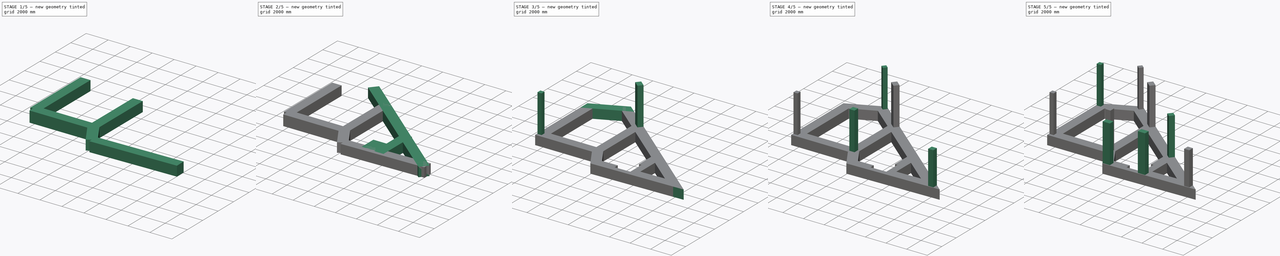
[diagram: build sequence overview — one tinted view per stage of 5, left to right]
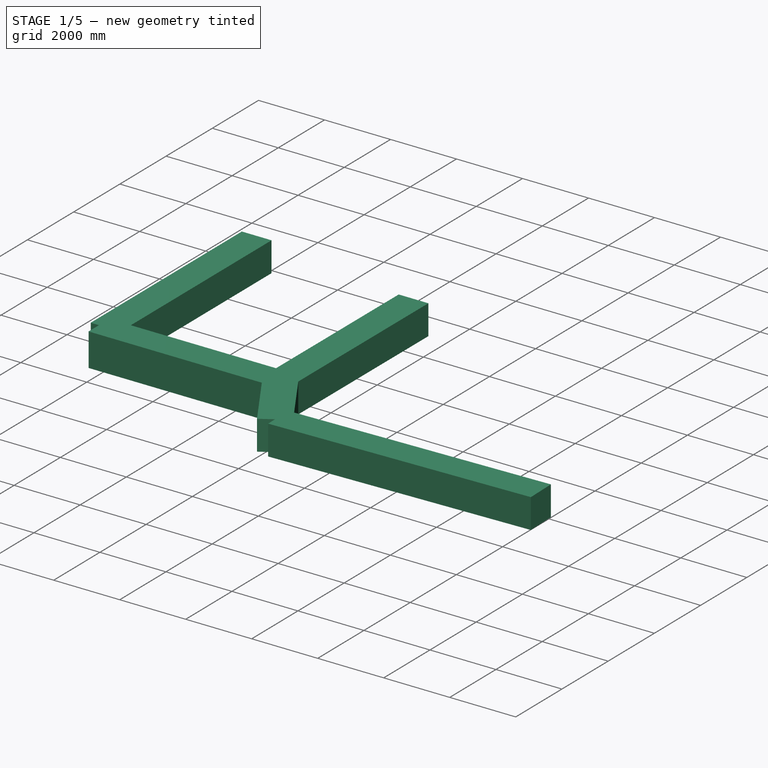
[diagram: stage 1 of 5 — iso view after this stage's code; geometry added in this stage tinted green]
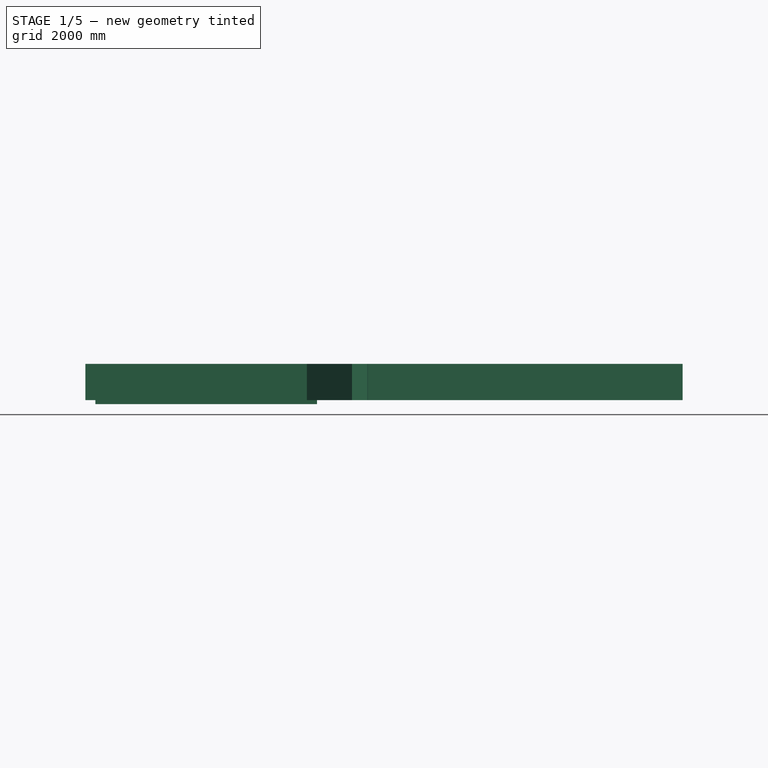
[diagram: stage 1 of 5 — front view after this stage's code; geometry added in this stage tinted green]
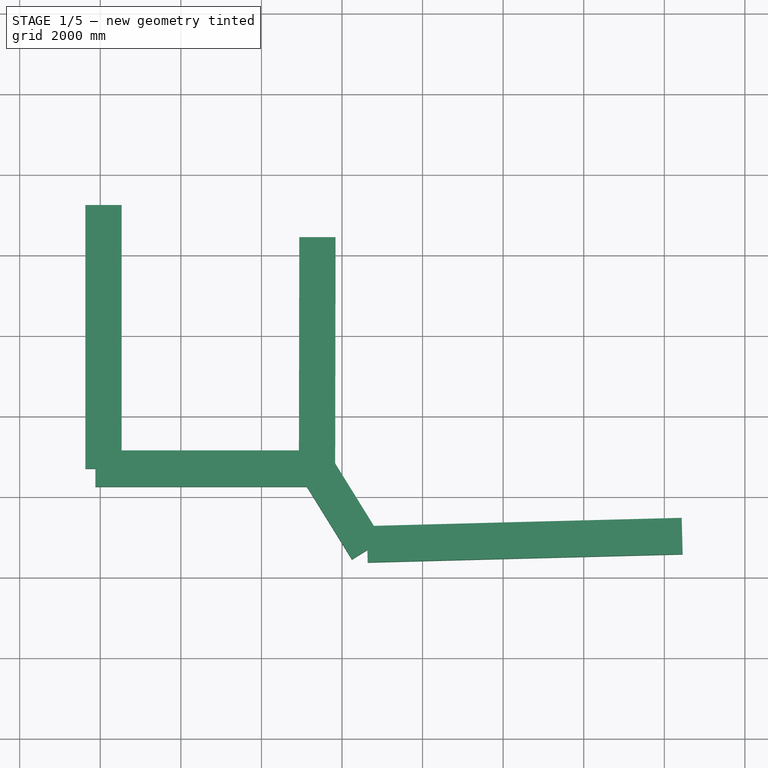
[diagram: stage 1 of 5 — top view after this stage's code; geometry added in this stage tinted green]
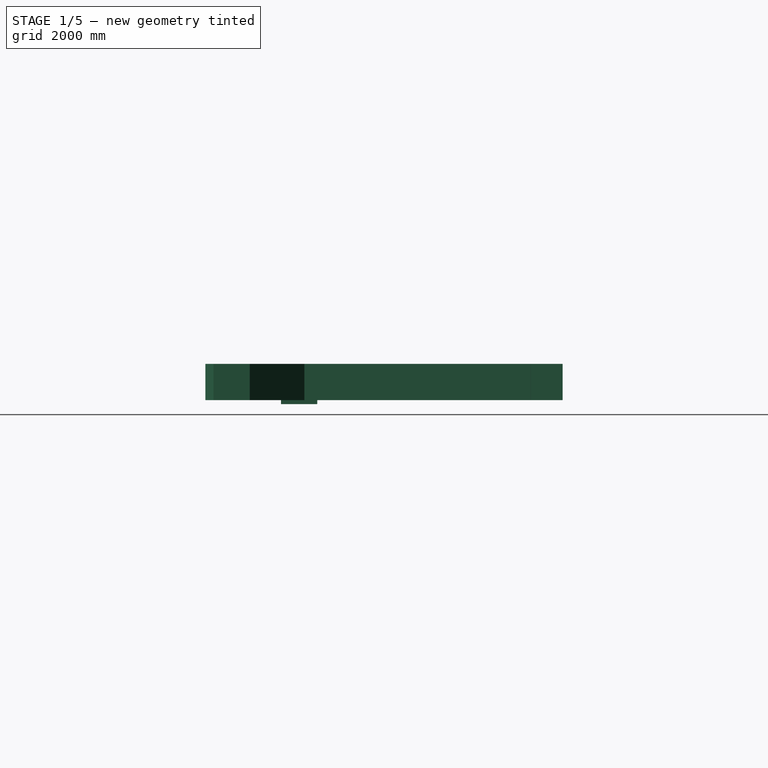
[diagram: stage 1 of 5 — right view after this stage's code; geometry added in this stage tinted green]
FCSTD DOCUMENT  (FreeCAD 1.0R1234)
Label: adampira
License: All rights reserved
LicenseURL: http://en.wikipedia.org/wiki/All_rights_reserved
objects: Part::Feature×132, Part::Part2DObjectPython×42, Part::FeaturePython×34, App::FeaturePython×10, App::DocumentObjectGroup×6, Sketcher::SketchObject×1
note: 305 computed .brp shape members not serialized (recipe doc carries the construction recipe); baked Part::Feature solids carry a one-line shape summary decoded from their .brp

FEATURE [Part::Part2DObjectPython] Wire002  # Draft 2D object (typed FeaturePython)
  Area = 0
  ChamferSize = 0
  Closed = false
  End = (10630,681,0)
  FilletRadius = 0
  Length = 7819.75
  MakeFace = false
  Points = (3) [(18447.1,884.944,0),(13990,770,0),(10630,681,0)]
  Start = (18447.1,884.944,0)
  Subdivisions = 0
FEATURE [Part::FeaturePython] BaseFoundation005  # Arch/BIM 77 (typed FeaturePython)
  Base = -> Wire002
  HorizontalArea = 0
  IfcData = attributes={"GlobalId": {"name": "GlobalId", "type": "IfcGloballyUniqueId", "is_enum": false, "enum_values": []}, "Description": {"... (+511 chars omitted),+1 more (map truncated)
  IfcType = 77
  MoveBase = false
  MoveWithHost = false
  PerimeterLength = 0
  PredefinedType = 0
  VerticalArea = 0
  align = 1
  design_type = 0
  fc = 25000
  final_wire_first_point = (0,0,0)
  final_wire_last_point = (0,0,0)
  height = 900
  ks = 2
  layer = 0
  left_width = 310
  right_width = 590
  width = 900
FEATURE [Part::Part2DObjectPython] Line029  # Draft 2D object (typed FeaturePython)
  Area = 0
  ChamferSize = 0
  Closed = false
  End = (3880,9240,0)
  FilletRadius = 0
  Length = 6540
  MakeFace = false
  Points = (2) [(3880,2700,0),(3880,9240,0)]
  Start = (3880,2700,0)
  Subdivisions = 0
FEATURE [Part::FeaturePython] BaseFoundation  # Arch/BIM 77 (typed FeaturePython)
  Base = -> Line029
  HorizontalArea = 0
  IfcData = attributes={"GlobalId": {"name": "GlobalId", "type": "IfcGloballyUniqueId", "is_enum": false, "enum_values": []}, "Description": {"... (+511 chars omitted),+1 more (map truncated)
  IfcType = 77
  MoveBase = false
  MoveWithHost = false
  PerimeterLength = 0
  PredefinedType = 0
  VerticalArea = 0
  align = 1
  design_type = 0
  fc = 25000
  final_wire_first_point = (0,0,0)
  final_wire_last_point = (0,0,0)
  height = 900
  ks = 2
  layer = 1
  left_width = 250
  right_width = 650
  width = 900
FEATURE [Part::Part2DObjectPython] Wire001  # Draft 2D object (typed FeaturePython)
  Area = 0
  ChamferSize = 0
  Closed = false
  End = (10630,681,0)
  FilletRadius = 0
  Length = 8118.41
  MakeFace = false
  Points = (3) [(9390,8443.77,0),(9380,2700,0),(10630,681,0)]
  Start = (9390,8443.77,0)
  Subdivisions = 0
FEATURE [Part::FeaturePython] BaseFoundation003  # Arch/BIM 77 (typed FeaturePython)
  Base = -> Wire001
  HorizontalArea = 0
  IfcData = attributes={"GlobalId": {"name": "GlobalId", "type": "IfcGloballyUniqueId", "is_enum": false, "enum_values": []}, "Description": {"... (+511 chars omitted),+1 more (map truncated)
  IfcType = 77
  MoveBase = false
  MoveWithHost = false
  PerimeterLength = 0
  PredefinedType = 0
  VerticalArea = 0
  align = 0
  design_type = 0
  fc = 25000
  final_wire_first_point = (0,0,0)
  final_wire_last_point = (0,0,0)
  height = 900
  ks = 2
  layer = 1
  left_width = 450
  right_width = 450
  width = 900
FEATURE [Part::Part2DObjectPython] Line136  # Draft 2D object (typed FeaturePython)
  Area = 0
  ChamferSize = 0
  Closed = false
  End = (9380,2700,0)
  FilletRadius = 0
  Length = 5500
  MakeFace = true
  Points = (2) [(3880,2700,0),(9380,2700,0)]
  Start = (3880,2700,0)
  Subdivisions = 0
FEATURE [Part::FeaturePython] BaseFoundation008  # Arch/BIM 77 (typed FeaturePython)
  Base = -> Line136
  HorizontalArea = 0
  IfcData = attributes={"GlobalId": {"name": "GlobalId", "type": "IfcGloballyUniqueId", "is_enum": false, "enum_values": []}, "Description": {"... (+511 chars omitted),+1 more (map truncated)
  IfcType = 77
  MoveBase = false
  MoveWithHost = false
  PerimeterLength = 0
  PredefinedType = 0
  VerticalArea = 0
  align = 0
  design_type = 0
  fc = 25000
  final_wire_first_point = (0,0,0)
  final_wire_last_point = (0,0,0)
  height = 1000
  ks = 2
  layer = 0
  left_width = 450
  right_width = 450
  width = 900
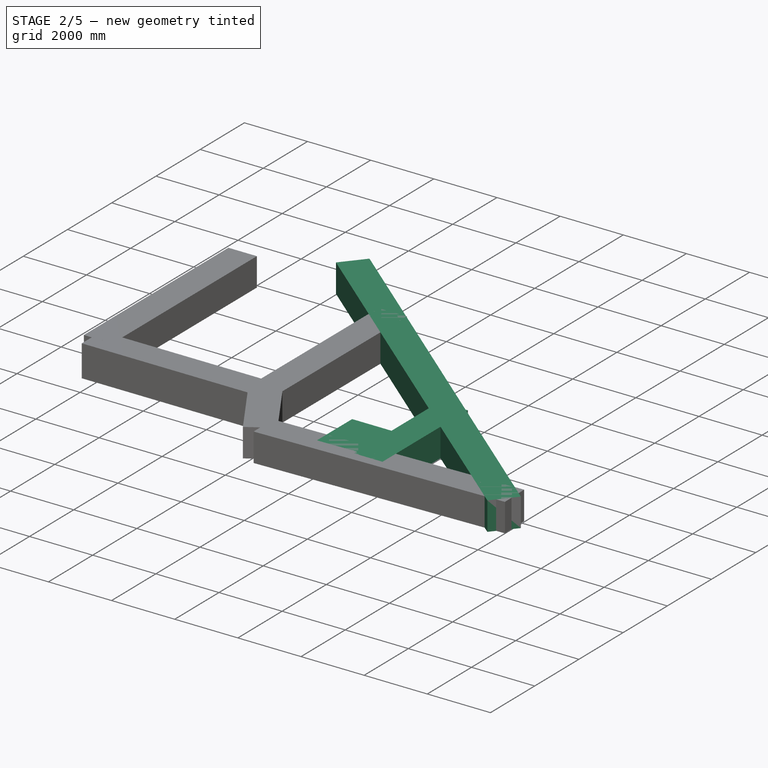
[diagram: stage 2 of 5 — iso view after this stage's code; geometry added in this stage tinted green]
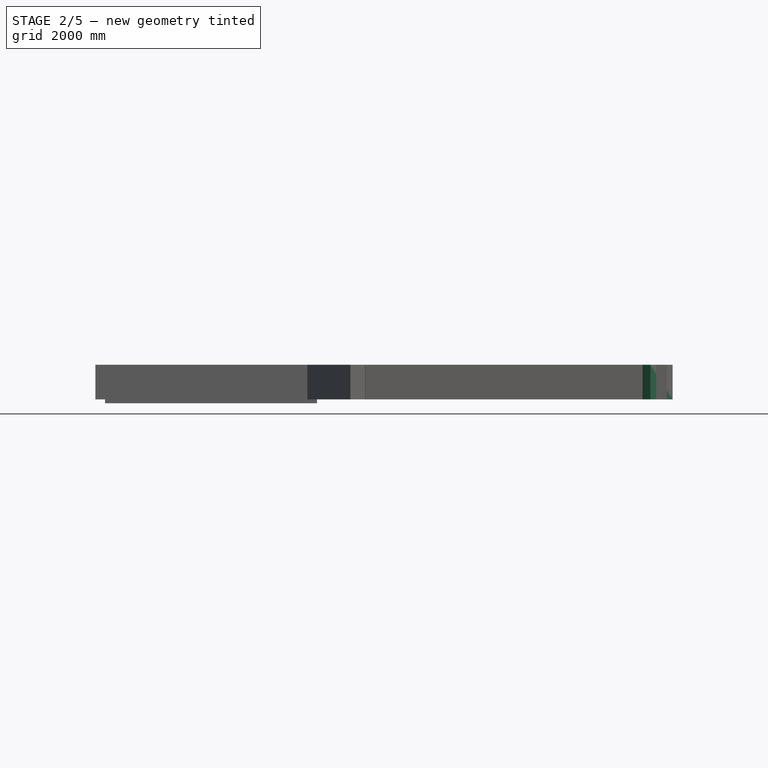
[diagram: stage 2 of 5 — front view after this stage's code; geometry added in this stage tinted green]
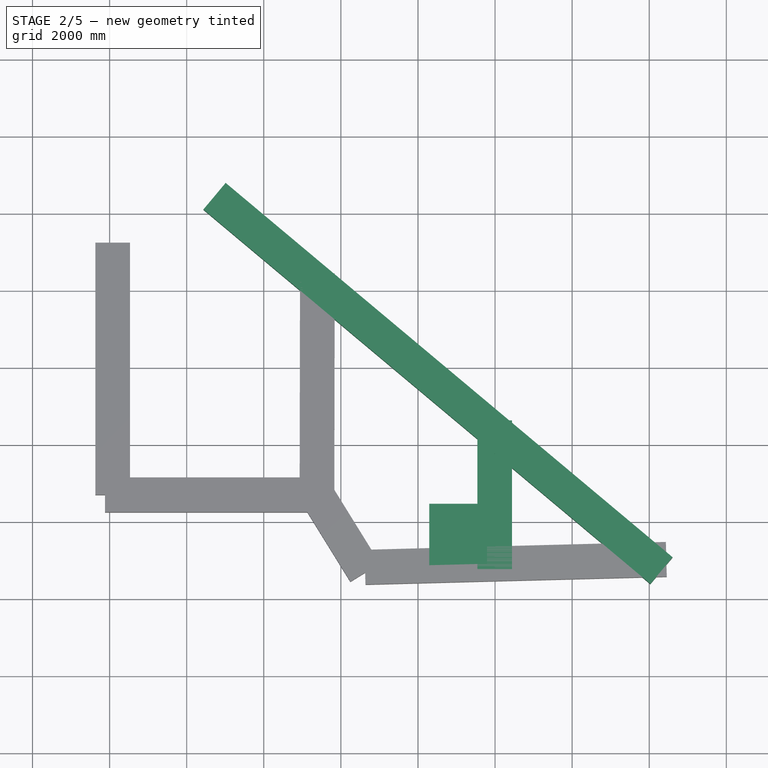
[diagram: stage 2 of 5 — top view after this stage's code; geometry added in this stage tinted green]
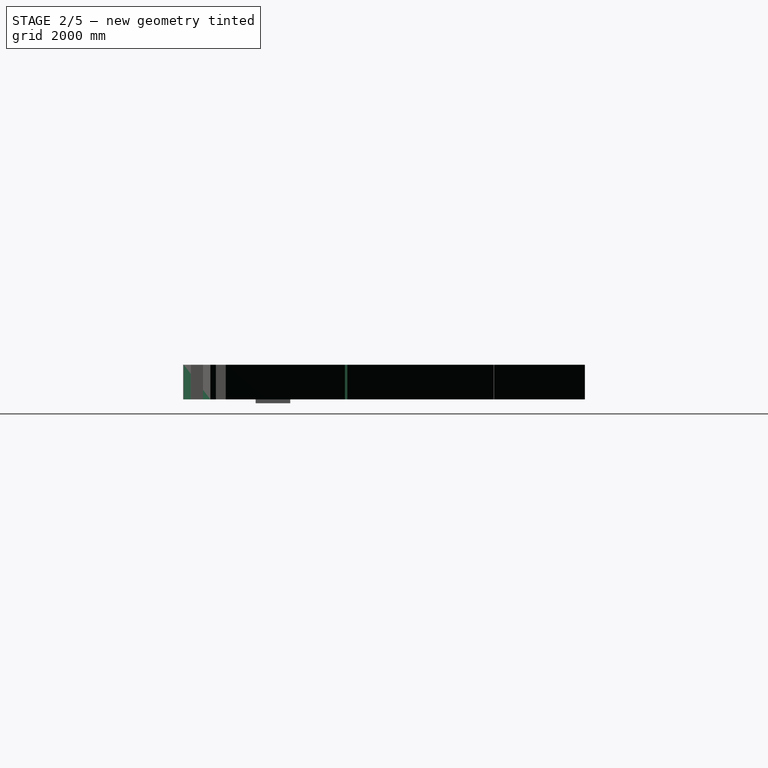
[diagram: stage 2 of 5 — right view after this stage's code; geometry added in this stage tinted green]
FEATURE [Part::Part2DObjectPython] Line031  # Draft 2D object (typed FeaturePython)
  Area = 0
  ChamferSize = 0
  Closed = false
  End = (18447.1,884.944,0)
  FilletRadius = 0
  Length = 15128.6
  MakeFace = false
  Points = (2) [(6850,10600,0),(18447.1,884.944,0)]
  Start = (6850,10600,0)
  Subdivisions = 0
FEATURE [Part::FeaturePython] BaseFoundation004  # Arch/BIM 77 (typed FeaturePython)
  Base = -> Line031
  HorizontalArea = 0
  IfcData = attributes={"GlobalId": {"name": "GlobalId", "type": "IfcGloballyUniqueId", "is_enum": false, "enum_values": []}, "Description": {"... (+511 chars omitted),+1 more (map truncated)
  IfcType = 77
  MoveBase = false
  MoveWithHost = false
  PerimeterLength = 0
  PredefinedType = 0
  VerticalArea = 0
  align = 1
  design_type = 0
  fc = 25000
  final_wire_first_point = (0,0,0)
  final_wire_last_point = (0,0,0)
  height = 900
  ks = 2
  layer = 0
  left_width = 250
  right_width = 650
  width = 900
FEATURE [Part::Part2DObjectPython] Line032  # Draft 2D object (typed FeaturePython)
  Area = 0
  ChamferSize = 0
  Closed = false
  End = (13990,4630,0)
  FilletRadius = 0
  Length = 3860
  MakeFace = false
  Points = (2) [(13990,770,0),(13990,4630,0)]
  Start = (13990,770,0)
  Subdivisions = 0
FEATURE [Part::FeaturePython] BaseFoundation006  # Arch/BIM 77 (typed FeaturePython)
  Base = -> Line032
  HorizontalArea = 0
  IfcData = attributes={"GlobalId": {"name": "GlobalId", "type": "IfcGloballyUniqueId", "is_enum": false, "enum_values": []}, "Description": {"... (+511 chars omitted),+1 more (map truncated)
  IfcType = 77
  MoveBase = false
  MoveWithHost = false
  PerimeterLength = 0
  PredefinedType = 0
  VerticalArea = 0
  align = 0
  design_type = 0
  fc = 25000
  final_wire_first_point = (0,0,0)
  final_wire_last_point = (0,0,0)
  height = 900
  ks = 2
  layer = 1
  left_width = 450
  right_width = 450
  width = 900
FEATURE [Part::Feature] Line038
  Placement = pos=(3152.09,199.738,0) rot=(0,0,1;0rad)
  shape: bbox 5777 x 147.2 x 2e-07 mm, 0 faces, 0 solids (baked)
FEATURE [Part::Feature] Line039
  Placement = pos=(3152.09,199.738,0) rot=(0,0,1;0rad)
  shape: bbox 3054 x 2e-07 x 2e-07 mm, 0 faces, 0 solids (baked)
FEATURE [Part::Feature] Line040
  Placement = pos=(3152.09,199.738,0) rot=(0,0,1;0rad)
  shape: bbox 2e-07 x 501.7 x 2e-07 mm, 0 faces, 0 solids (baked)
FEATURE [Part::Feature] Line041
  Placement = pos=(3152.09,199.738,0) rot=(0,0,1;0rad)
  shape: bbox 3180 x 1462 x 2e-07 mm, 0 faces, 0 solids (baked)
FEATURE [Part::Feature] Line042
  Placement = pos=(3152.09,199.738,0) rot=(0,0,1;0rad)
  shape: bbox 3148 x 2631 x 2e-07 mm, 0 faces, 0 solids (baked)
FEATURE [Part::Feature] Line043
  Placement = pos=(3152.09,199.738,0) rot=(0,0,1;0rad)
  shape: bbox 2e-07 x 5500 x 2e-07 mm, 0 faces, 0 solids (baked)
FEATURE [Part::Feature] Line044
  Placement = pos=(3152.09,199.738,0) rot=(0,0,1;0rad)
  shape: bbox 5049 x 4220 x 2e-07 mm, 0 faces, 0 solids (baked)
FEATURE [Part::Feature] Line045
  Placement = pos=(3152.09,199.738,0) rot=(0,0,1;0rad)
  shape: bbox 115.1 x 96.2 x 2e-07 mm, 0 faces, 0 solids (baked)
FEATURE [Part::Feature] Line046
  Placement = pos=(3152.09,199.738,0) rot=(0,0,1;0rad)
  shape: bbox 982.7 x 821.4 x 2e-07 mm, 0 faces, 0 solids (baked)
FEATURE [Part::Feature] Line047
  Placement = pos=(3152.09,199.738,0) rot=(0,0,1;0rad)
  shape: bbox 1949 x 1629 x 2e-07 mm, 0 faces, 0 solids (baked)
FEATURE [Part::Feature] Line048
  Placement = pos=(3152.09,199.738,0) rot=(0,0,1;0rad)
  shape: bbox 94.69 x 43.53 x 2e-07 mm, 0 faces, 0 solids (baked)
FEATURE [Part::Feature] Line049
  Placement = pos=(3152.09,199.738,0) rot=(0,0,1;0rad)
  shape: bbox 2754 x 1266 x 2e-07 mm, 0 faces, 0 solids (baked)
FEATURE [Part::Feature] Line050
  Placement = pos=(3152.09,199.738,0) rot=(0,0,1;0rad)
  shape: bbox 2e-07 x 373.6 x 2e-07 mm, 0 faces, 0 solids (baked)
FEATURE [Part::Feature] Line051
  Placement = pos=(3152.09,199.738,0) rot=(0,0,1;0rad)
  shape: bbox 100 x 2e-07 x 2e-07 mm, 0 faces, 0 solids (baked)
FEATURE [Part::Feature] Line052
  Placement = pos=(3152.09,199.738,0) rot=(0,0,1;0rad)
  shape: bbox 1363 x 2e-07 x 2e-07 mm, 0 faces, 0 solids (baked)
FEATURE [Part::Feature] Line053
  Placement = pos=(3152.09,199.738,0) rot=(0,0,1;0rad)
  shape: bbox 2854 x 2e-07 x 2e-07 mm, 0 faces, 0 solids (baked)
FEATURE [Part::Feature] Line054
  Placement = pos=(3152.09,199.738,0) rot=(0,0,1;0rad)
  shape: bbox 1244 x 2e-07 x 2e-07 mm, 0 faces, 0 solids (baked)
FEATURE [Part::Feature] Line055
  Placement = pos=(3152.09,199.738,0) rot=(0,0,1;0rad)
  shape: bbox 2850 x 72.62 x 2e-07 mm, 0 faces, 0 solids (baked)
FEATURE [Part::Feature] Line056
  Placement = pos=(3152.09,199.738,0) rot=(0,0,1;0rad)
  shape: bbox 1500 x 38.22 x 2e-07 mm, 0 faces, 0 solids (baked)
FEATURE [Part::Feature] Line057
  Placement = pos=(3152.09,199.738,0) rot=(0,0,1;0rad)
  shape: bbox 4462 x 113.7 x 2e-07 mm, 0 faces, 0 solids (baked)
FEATURE [Part::Feature] Line058
  Placement = pos=(3152.09,199.738,0) rot=(0,0,1;0rad)
  shape: bbox 1883 x 47.98 x 2e-07 mm, 0 faces, 0 solids (baked)
FEATURE [Part::Feature] Line059
  Placement = pos=(3152.09,199.738,0) rot=(0,0,1;0rad)
  shape: bbox 2e-07 x 1562 x 2e-07 mm, 0 faces, 0 solids (baked)
FEATURE [Part::Feature] Line060
  Placement = pos=(3152.09,199.738,0) rot=(0,0,1;0rad)
  shape: bbox 1700 x 43.32 x 2e-07 mm, 0 faces, 0 solids (baked)
FEATURE [Part::Feature] Line061
  Placement = pos=(3152.09,199.738,0) rot=(0,0,1;0rad)
  shape: bbox 2e-07 x 1469 x 2e-07 mm, 0 faces, 0 solids (baked)
FEATURE [Part::Feature] Line062 .. Line065  x4 (patterned run collapsed; names and placements below)
  shape: bbox 1100 x 2e-07 x 2e-07 mm, 0 faces, 0 solids (baked)
  placements: all 4 at pos=(3152.09,199.738,0) rot=(0,0,1;0rad)
FEATURE [Part::Feature] Line066
  Placement = pos=(3152.09,199.738,0) rot=(0,0,1;0rad)
  shape: bbox 2e-07 x 1508 x 2e-07 mm, 0 faces, 0 solids (baked)
FEATURE [Part::Feature] Line067
  Placement = pos=(3152.09,199.738,0) rot=(0,0,1;0rad)
  shape: bbox 28.02 x 1100 x 2e-07 mm, 0 faces, 0 solids (baked)
FEATURE [Part::Feature] Line068
  Placement = pos=(3152.09,199.738,0) rot=(0,0,1;0rad)
  shape: bbox 28.02 x 1100 x 2e-07 mm, 0 faces, 0 solids (baked)
FEATURE [Part::Feature] Line069
  Placement = pos=(3152.09,199.738,0) rot=(0,0,1;0rad)
  shape: bbox 14.08 x 552.4 x 2e-07 mm, 0 faces, 0 solids (baked)
FEATURE [Part::Feature] Line070
  Placement = pos=(3152.09,199.738,0) rot=(0,0,1;0rad)
  shape: bbox 13.94 x 547.2 x 2e-07 mm, 0 faces, 0 solids (baked)
FEATURE [Part::Feature] Line071
  Placement = pos=(3152.09,199.738,0) rot=(0,0,1;0rad)
  shape: bbox 28.02 x 1100 x 2e-07 mm, 0 faces, 0 solids (baked)
FEATURE [Part::Feature] Line072
  Placement = pos=(3152.09,199.738,0) rot=(0,0,1;0rad)
  shape: bbox 28.02 x 1100 x 2e-07 mm, 0 faces, 0 solids (baked)
FEATURE [Part::Feature] Line073
  Placement = pos=(3152.09,199.738,0) rot=(0,0,1;0rad)
  shape: bbox 28.02 x 1100 x 2e-07 mm, 0 faces, 0 solids (baked)
FEATURE [Part::Feature] Line074
  Placement = pos=(3152.09,199.738,0) rot=(0,0,1;0rad)
  shape: bbox 705.4 x 844 x 2e-07 mm, 0 faces, 0 solids (baked)
FEATURE [Part::Feature] Line075
  Placement = pos=(3152.09,199.738,0) rot=(0,0,1;0rad)
  shape: bbox 705.4 x 844 x 2e-07 mm, 0 faces, 0 solids (baked)
FEATURE [Part::Feature] Line076
  Placement = pos=(3152.09,199.738,0) rot=(0,0,1;0rad)
  shape: bbox 28.02 x 1100 x 2e-07 mm, 0 faces, 0 solids (baked)
FEATURE [Part::Feature] Line077
  Placement = pos=(3152.09,199.738,0) rot=(0,0,1;0rad)
  shape: bbox 2e-07 x 1550 x 2e-07 mm, 0 faces, 0 solids (baked)
FEATURE [Part::Feature] Line078
  Placement = pos=(3152.09,199.738,0) rot=(0,0,1;0rad)
  shape: bbox 2e-07 x 1750 x 2e-07 mm, 0 faces, 0 solids (baked)
FEATURE [Part::Feature] Line079
  Placement = pos=(3152.09,199.738,0) rot=(0,0,1;0rad)
  shape: bbox 2e-07 x 1850 x 2e-07 mm, 0 faces, 0 solids (baked)
FEATURE [Part::Feature] Line080
  Placement = pos=(3152.09,199.738,0) rot=(0,0,1;0rad)
  shape: bbox 2e-07 x 930 x 2e-07 mm, 0 faces, 0 solids (baked)
FEATURE [Part::Feature] Line081
  Placement = pos=(3152.09,199.738,0) rot=(0,0,1;0rad)
  shape: bbox 550 x 2e-07 x 2e-07 mm, 0 faces, 0 solids (baked)
FEATURE [Part::Feature] Line082
  Placement = pos=(3152.09,199.738,0) rot=(0,0,1;0rad)
  shape: bbox 150 x 2e-07 x 2e-07 mm, 0 faces, 0 solids (baked)
FEATURE [Sketcher::SketchObject] sketch
  ExternalGeometry = -> [Line038,Line066,Line082]
  FullyConstrained = false
  sketch-geometry (4):
    g0: LineSegment StartX=12291.7 StartY=870.499 StartZ=0 EndX=12291.7 EndY=2465.03 EndZ=0
    g1: LineSegment StartX=12291.7 StartY=2465.03 StartZ=0 EndX=13791.7 EndY=2465.03 EndZ=0
    g2: LineSegment StartX=13791.7 StartY=2465.03 StartZ=0 EndX=13791.7 EndY=908.719 EndZ=0
    g3: LineSegment StartX=13791.7 StartY=908.719 StartZ=0 EndX=12291.7 EndY=870.499 EndZ=0
  constraints (11):
    c: Coincident(g0,g1)
    c: Coincident(g1,g2)
    c: Coincident(g2,g3)
    c: Coincident(g3,g0)
    c: Horizontal(g1)
    c: Vertical(g0)
    c: Vertical(g2)
    c: DistanceX(g-5,g2) = 0
    c: Coincident(g0,g-4)
    c: PointOnObject(g2,g-4)
    c: DistanceY(g-6,g0) = 0
FEATURE [Part::FeaturePython] Opening  # Arch/BIM 93 (typed FeaturePython)
  Base = -> sketch
  HorizontalArea = 0
  IfcData = attributes={"GlobalId": {"name": "GlobalId", "type": "IfcGloballyUniqueId", "is_enum": false, "enum_values": []}, "Description": {"... (+446 chars omitted),+1 more (map truncated)
  IfcType = 93
  MoveBase = false
  MoveWithHost = false
  PerimeterLength = 0
  PredefinedType = 0
  VerticalArea = 0
  height = 900
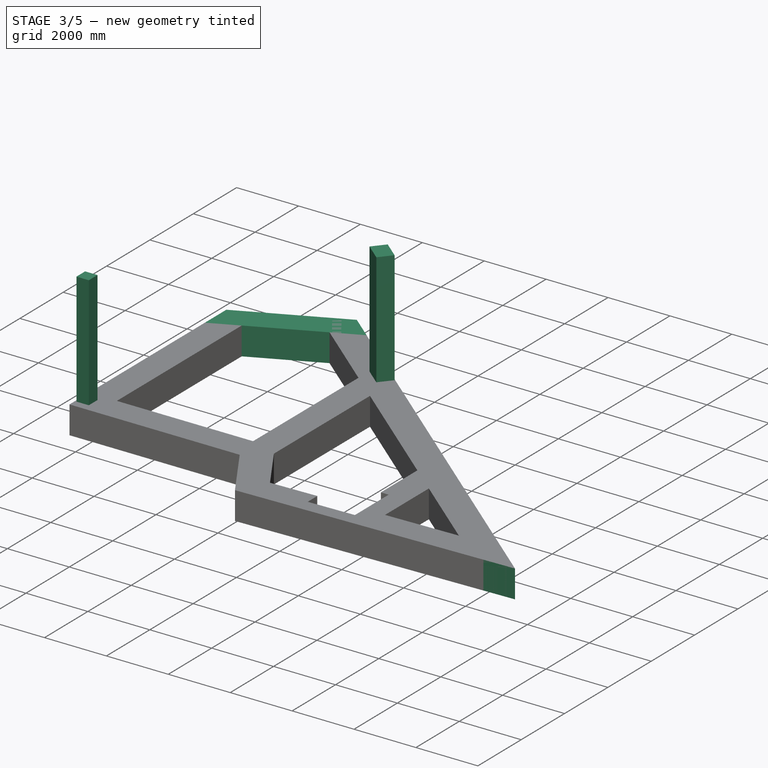
[diagram: stage 3 of 5 — iso view after this stage's code; geometry added in this stage tinted green]
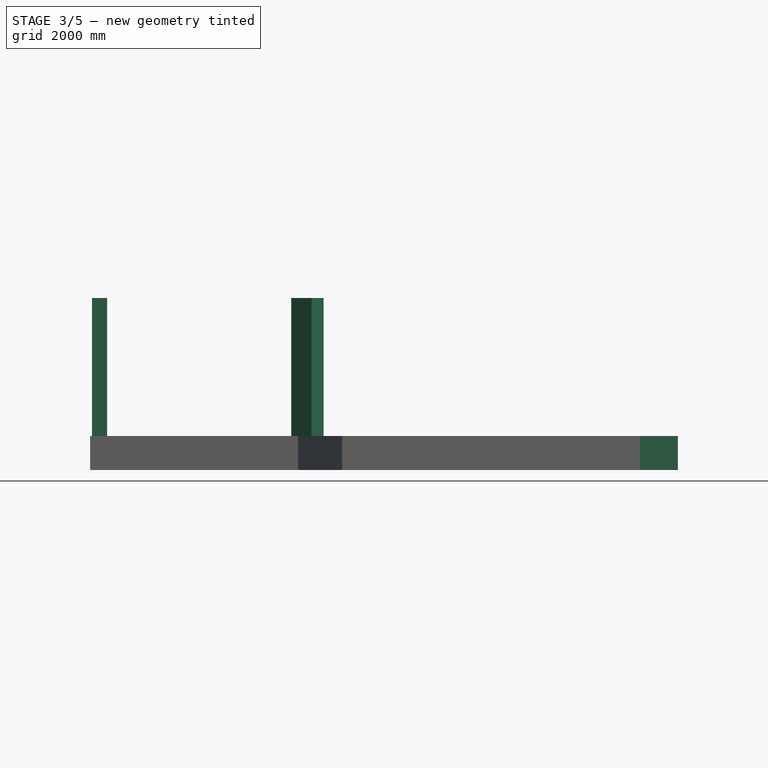
[diagram: stage 3 of 5 — front view after this stage's code; geometry added in this stage tinted green]
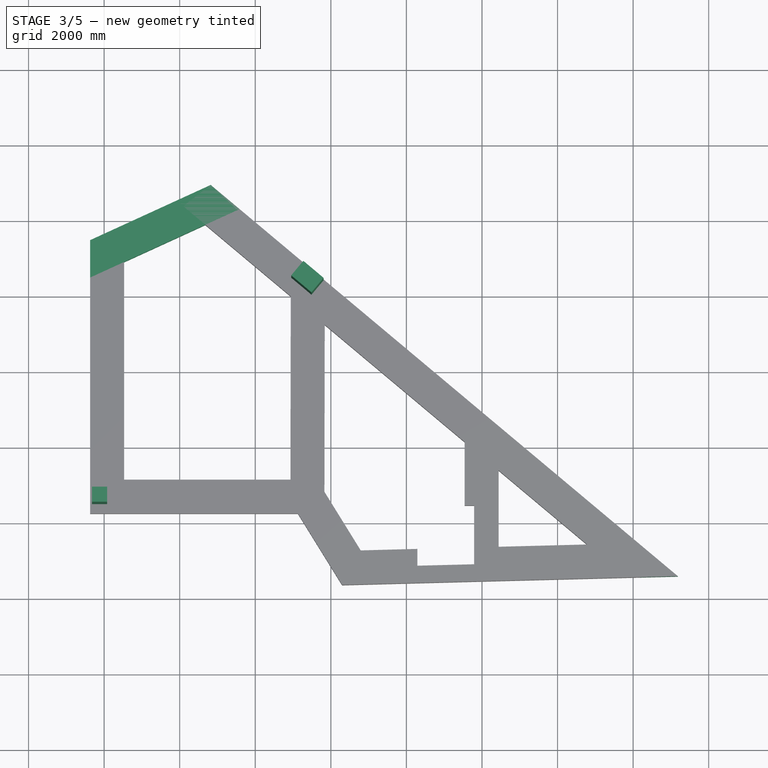
[diagram: stage 3 of 5 — top view after this stage's code; geometry added in this stage tinted green]
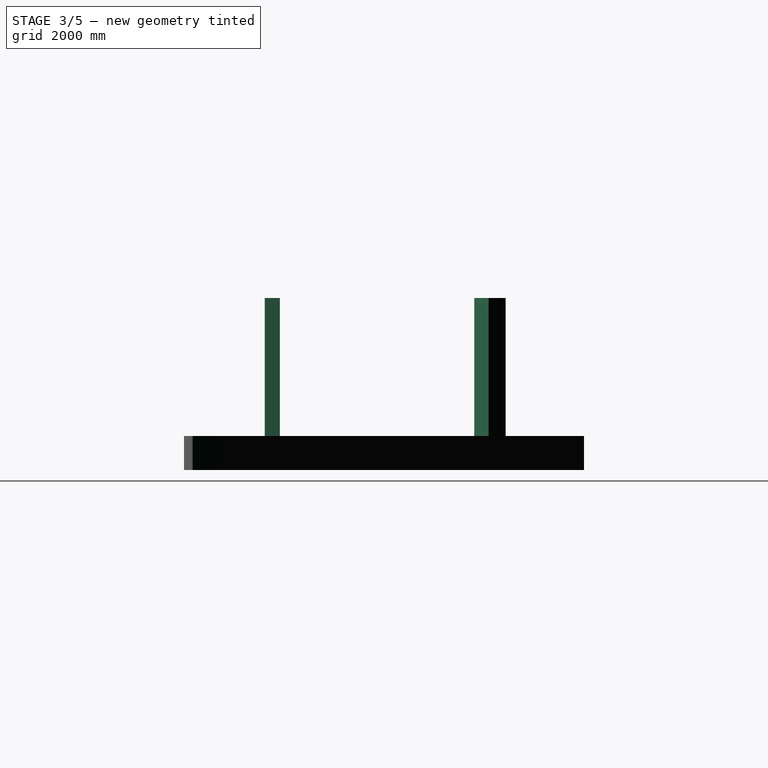
[diagram: stage 3 of 5 — right view after this stage's code; geometry added in this stage tinted green]
FEATURE [App::DocumentObjectGroup] Columns
FEATURE [Part::Part2DObjectPython] C5016A  # Draft 2D object (typed FeaturePython)
  Height = 500
  Width = 500
FEATURE [Part::Part2DObjectPython] C5012A  # Draft 2D object (typed FeaturePython)
  Height = 500
  Width = 500
FEATURE [Part::Part2DObjectPython] C4012D  # Draft 2D object (typed FeaturePython)
  Height = 400
  Width = 400
FEATURE [Part::Part2DObjectPython] C4012C  # Draft 2D object (typed FeaturePython)
  Height = 400
  Width = 400
FEATURE [Part::Part2DObjectPython] C5012AC  # Draft 2D object (typed FeaturePython)
  Height = 500
  Width = 500
FEATURE [Part::Part2DObjectPython] Line007  # Draft 2D object (typed FeaturePython)
  Area = 0
  ChamferSize = 0
  Closed = false
  End = (3880,9240,0)
  FilletRadius = 0
  Length = 3500
  MakeFace = true
  Points = (2) [(3880,5740,0),(3880,9240,0)]
  Start = (3880,5740,0)
  Subdivisions = 0
  type = Beam
FEATURE [Part::Part2DObjectPython] Line008  # Draft 2D object (typed FeaturePython)
  Area = 0
  ChamferSize = 0
  Closed = false
  End = (13990,4630,0)
  FilletRadius = 0
  Length = 3860
  MakeFace = true
  Points = (2) [(13990,770,0),(13990,4630,0)]
  Start = (13990,770,0)
  Subdivisions = 0
  type = Beam
FEATURE [Part::Part2DObjectPython] Line009  # Draft 2D object (typed FeaturePython)
  Area = 0
  ChamferSize = 0
  Closed = false
  End = (13990,770,0)
  FilletRadius = 0
  Length = 4601.32
  MakeFace = true
  Points = (2) [(9390,660,0),(13990,770,0)]
  Start = (9390,660,0)
  Subdivisions = 0
  type = Beam
FEATURE [Part::Part2DObjectPython] Line010  # Draft 2D object (typed FeaturePython)
  Area = 0
  ChamferSize = 0
  Closed = false
  End = (9390,5740,0)
  FilletRadius = 0
  Length = 5080
  MakeFace = true
  Points = (2) [(9390,660,0),(9390,5740,0)]
  Start = (9390,660,0)
  Subdivisions = 0
  type = Beam
FEATURE [Part::Part2DObjectPython] Line016  # Draft 2D object (typed FeaturePython)
  Area = 0
  ChamferSize = 0
  Closed = false
  End = (6850,10600,0)
  FilletRadius = 0
  Length = 3266.57
  MakeFace = true
  Points = (2) [(3880,9240,0),(6850,10600,0)]
  Start = (3880,9240,0)
  Subdivisions = 0
  type = Beam
FEATURE [Part::Part2DObjectPython] Line019  # Draft 2D object (typed FeaturePython)
  Area = 0
  ChamferSize = 0
  Closed = false
  End = (13990,4630,0)
  FilletRadius = 0
  Length = 9307.01
  MakeFace = true
  Points = (2) [(6850,10600,0),(13990,4630,0)]
  Start = (6850,10600,0)
  Subdivisions = 0
  type = Beam
FEATURE [App::DocumentObjectGroup] Beams
  Group = -> [Line007,Line008,Line009,Line010,Line016,Line019]
FEATURE [App::FeaturePython] Safe  # WARN: FeaturePython — macro-defined, semantics opaque (R4)
  input = <path>
  output = <path>
FEATURE [Part::Part2DObjectPython] Line027  # Draft 2D object (typed FeaturePython)
  Area = 0
  ChamferSize = 0
  Closed = false
  End = (18300,880,0)
  FilletRadius = 0
  Length = 4311.4
  MakeFace = true
  Points = (2) [(13990,770,0),(18300,880,0)]
  Start = (13990,770,0)
  Subdivisions = 0
  type = Beam
FEATURE [Part::Part2DObjectPython] Line028  # Draft 2D object (typed FeaturePython)
  Area = 0
  ChamferSize = 0
  Closed = false
  End = (13990,4630,0)
  FilletRadius = 0
  Length = 5713.02
  MakeFace = true
  Points = (2) [(18300,880,0),(13990,4630,0)]
  Start = (18300,880,0)
  Subdivisions = 0
  type = Beam
FEATURE [Part::Part2DObjectPython] Line030  # Draft 2D object (typed FeaturePython)
  Area = 0
  ChamferSize = 0
  Closed = false
  End = (6850,10600,0)
  FilletRadius = 0
  Length = 3266.57
  MakeFace = false
  Points = (2) [(3880,9240,0),(6850,10600,0)]
  Start = (3880,9240,0)
  Subdivisions = 0
FEATURE [Part::FeaturePython] BaseFoundation002  # Arch/BIM 77 (typed FeaturePython)
  Base = -> Line030
  HorizontalArea = 0
  IfcData = attributes={"GlobalId": {"name": "GlobalId", "type": "IfcGloballyUniqueId", "is_enum": false, "enum_values": []}, "Description": {"... (+511 chars omitted),+1 more (map truncated)
  IfcType = 77
  MoveBase = false
  MoveWithHost = false
  PerimeterLength = 0
  PredefinedType = 0
  VerticalArea = 0
  align = 1
  design_type = 0
  fc = 25000
  final_wire_first_point = (0,0,0)
  final_wire_last_point = (0,0,0)
  height = 900
  ks = 2
  layer = 0
  left_width = 330
  right_width = 570
  width = 900
FEATURE [Part::FeaturePython] Structure007  label="C12_Story1"  # Arch/BIM 24 (typed FeaturePython)
  AttacherType = Attacher::AttachEngine3D
  AttachmentOffset = pos=(0,0,0) rot=(0,0,1;0.872665rad)
  Base = -> C5016A001
  BaseMirror = false
  BaseOffsetX = 0
  BaseOffsetY = 0
  BasePerpendicularToTool = false
  BaseRotation = 0
  ComputedLength = 3650
  FaceMaker = 0
  Height = 3650
  HorizontalArea = 350000
  IfcData = attributes={"GlobalId": {"name": "GlobalId", "type": "IfcGloballyUniqueId", "is_enum": false, "enum_values": []}, "Description": {"... (+438 chars omitted),+1 more (map truncated)
  IfcType = 24
  Length = 0
  MapMode = 7
  MoveBase = false
  MoveWithHost = false
  Nodes = (2) [(9380,8460,0),(9380,8460,3650)]
  NodesOffset = 0
  Normal = (0,0,0)
  PerimeterLength = 2400
  Placement = pos=(9380,8460,0) rot=(0,0,1;0.872665rad)
  PredefinedType = 0
  Support = -> [Line021]
  ToolOffsetFirst = 0
  ToolOffsetLast = 0
  VerticalArea = 8760000
  Width = 100
  combos_load = Combo10Civil-rho1.2 Max=830.755539879904, -50606.3812457342, -329016.419877889,+38 more (map truncated)
FEATURE [Part::FeaturePython] Structure008  label="C8_Story1"  # Arch/BIM 24 (typed FeaturePython)
  AttacherType = Attacher::AttachEngine3D
  AttachmentOffset = pos=(0,0,0) rot=(0,0,1;1.5708rad)
  Base = -> C4012CD
  BaseMirror = false
  BaseOffsetX = 0
  BaseOffsetY = 0
  BasePerpendicularToTool = false
  BaseRotation = 0
  ComputedLength = 3650
  FaceMaker = 0
  Height = 3650
  HorizontalArea = 160000
  IfcData = attributes={"GlobalId": {"name": "GlobalId", "type": "IfcGloballyUniqueId", "is_enum": false, "enum_values": []}, "Description": {"... (+438 chars omitted),+1 more (map truncated)
  IfcType = 24
  Length = 0
  MapMode = 7
  MoveBase = false
  MoveWithHost = false
  Nodes = (2) [(3880,2700,0),(3880,2700,3650)]
  NodesOffset = 0
  Normal = (0,0,0)
  PerimeterLength = 1600
  Placement = pos=(3880,2700,0) rot=(0,0,1;1.5708rad)
  PredefinedType = 0
  Support = -> [Line135]
  ToolOffsetFirst = 0
  ToolOffsetLast = 0
  VerticalArea = 5.84e+06
  Width = 100
  combos_load = Combo10Civil-rho1.2 Max=298.185279752182, 5571.23014760007, -111068.97979551,+38 more (map truncated)
FEATURE [Part::FeaturePython] Foundation  # Arch/BIM 77 (typed FeaturePython)
  HorizontalArea = 0
  IfcData = attributes={"GlobalId": {"name": "GlobalId", "type": "IfcGloballyUniqueId", "is_enum": false, "enum_values": []}, "Description": {"... (+511 chars omitted),+1 more (map truncated)
  IfcType = 77
  MoveBase = false
  MoveWithHost = false
  PerimeterLength = 0
  PredefinedType = 0
  VerticalArea = 0
  base_foundations = -> [BaseFoundation002,BaseFoundation004,BaseFoundation006,BaseFoundation005,BaseFoundation,BaseFoundation003,BaseFoundation008]
  continuous_layer = 0
  cover = 75
  d = 825
  fc = 30000
  foundation_type = 0
  height = 900
  height_punch = 900
  ks = 2
  level = 0
  openings = -> [Opening]
  redraw = false
  split = true
FEATURE [App::FeaturePython] Text  # WARN: FeaturePython — macro-defined, semantics opaque (R4)
  Placement = pos=(13980,439.429,3650) rot=(0,0,1;0rad)
  Text = Edge 1 | 0.70
FEATURE [Part::FeaturePython] Punch  # WARN: FeaturePython — macro-defined, semantics opaque (R4)
  Area = 1.65267e+06
  Av = 400
  Fys = 340000
  I22 = 2.63668e+11
  I23 = 1.92641e+11
  I33 = 6.33459e+11
  Location = 4
  Ratio = 0.7
  Use_Reinforcement = false
  Vc = 2.26301e+09
  Vs = 0
  Vu = 1.58656e+09
  alpha_s = 30
  angle = 0
  b0 = 2003.24
  bx = 700
  by = 500
  center_of_column = (13980,770,0)
  center_of_load = (13980,770,0)
  center_of_punch = (14193.6,1032.63,-412.5)
  column = -> Structure
  combos_ratio = Combo10Civil-rho1.2=0.53,Combo11Civil-rho1.2=0.52,Combo12Civil-rho1.2=0.18,Combo13Civil-rho1.2=0.20,Combo14Civil-rho1.2=0.31,Combo15Civil-rho1.2=0.34,+34 more (map truncated)
  d = 825
  fc = 30000
  foundation = -> Foundation
  gamma_vx = 0.360383
  gamma_vy = 0.440969
  id = C3_Story1
  one_way_shear_capacity = 1.13151e+09
  s = 0
  text = -> Text
  user_location = false
  vc = 1369.31
  x = 0
FEATURE [App::FeaturePython] Text001  # WARN: FeaturePython — macro-defined, semantics opaque (R4)
  Placement = pos=(14651.7,4464.12,3650) rot=(0,0,1;0.874584rad)
  Text = Edge 2 | 0.80
FEATURE [Part::FeaturePython] Punch001  # WARN: FeaturePython — macro-defined, semantics opaque (R4)
  Area = 2.06202e+06
  Av = 400
  Fys = 340000
  I22 = 7.52333e+11
  I23 = 1.69671e+11
  I33 = 2.76181e+11
  Location = 5
  Ratio = 0.8
  Use_Reinforcement = false
  Vc = 2.82354e+09
  Vs = 0
  Vu = 2.2476e+09
  alpha_s = 30
  angle = 50.11
  b0 = 2499.42
  bx = 500
  by = 500
  center_of_column = (13980,4620,0)
  center_of_load = (13980,4620,0)
  center_of_punch = (13654.6,4527.72,-412.5)
  column = -> Structure001
  combos_ratio = Combo10Civil-rho1.2=0.39,Combo11Civil-rho1.2=0.41,Combo12Civil-rho1.2=0.64,Combo13Civil-rho1.2=0.62,Combo14Civil-rho1.2=0.49,Combo15Civil-rho1.2=0.47,+34 more (map truncated)
  d = 825
  fc = 30000
  foundation = -> Foundation
  gamma_vx = 0.4
  gamma_vy = 0.4
  id = C10_Story1
  one_way_shear_capacity = 1.41177e+09
  s = 0
  text = -> Text001
  user_location = false
  vc = 1369.31
  x = 0
FEATURE [App::FeaturePython] Text002  # WARN: FeaturePython — macro-defined, semantics opaque (R4)
  Placement = pos=(9867.5,867.294,3650) rot=(0,0,1;0rad)
  Text = Corner 1 | 0.58
FEATURE [Part::FeaturePython] Punch002  # WARN: FeaturePython — macro-defined, semantics opaque (R4)
  Area = 1.47008e+06
  Av = 400
  Fys = 340000
  I22 = 1.85e+11
  I23 = 0
  I33 = 5.20328e+11
  Location = 0
  Ratio = 0.58
  Use_Reinforcement = false
  Vc = 2.01299e+09
  Vs = 0
  Vu = 1.17606e+09
  alpha_s = 20
  angle = 0
  b0 = 2067.69
  bx = 700
  by = 500
  center_of_column = (10630,681,0)
  center_of_load = (10630,681,0)
  center_of_punch = (10856.1,1089.74,-412.5)
  column = -> Structure002
  combos_ratio = Combo10Civil-rho1.2=0.08,Combo11Civil-rho1.2=0.08,Combo12Civil-rho1.2=0.23,Combo13Civil-rho1.2=0.24,Combo14Civil-rho1.2=0.43,Combo15Civil-rho1.2=0.43,+34 more (map truncated)
  d = 825
  fc = 30000
  foundation = -> Foundation
  gamma_vx = 0.360383
  gamma_vy = 0.440969
  id = C2_Story1
  one_way_shear_capacity = 1.00649e+09
  s = 0
  text = -> Text002
  user_location = true
  vc = 1369.31
  x = 0
FEATURE [App::FeaturePython] Text003  # WARN: FeaturePython — macro-defined, semantics opaque (R4)
  Placement = pos=(3630,9230,3650) rot=(0,0,1;0rad)
  Text = Corner 4 | 0.35
FEATURE [Part::FeaturePython] Punch003  # WARN: FeaturePython — macro-defined, semantics opaque (R4)
  Area = 1.72219e+06
  Av = 400
  Fys = 340000
  I22 = 3.40354e+11
  I23 = 0
  I33 = 1.62127e+11
  Location = 3
  Ratio = 0.35
  Use_Reinforcement = false
  Vc = 2.3582e+09
  Vs = 0
  Vu = 826650000
  alpha_s = 20
  angle = 0
  b0 = 2176.87
  bx = 400
  by = 400
  center_of_column = (3880,9230,0)
  center_of_load = (3880,9230,0)
  center_of_punch = (4314.32,8976.93,-412.5)
  column = -> Structure003
  combos_ratio = Combo10Civil-rho1.2=0.12,Combo11Civil-rho1.2=0.13,Combo12Civil-rho1.2=0.35,Combo13Civil-rho1.2=0.34,Combo14Civil-rho1.2=0.34,Combo15Civil-rho1.2=0.34,+34 more (map truncated)
  d = 825
  fc = 30000
  foundation = -> Foundation
  gamma_vx = 0.4
  gamma_vy = 0.4
  id = C13_Story1
  one_way_shear_capacity = 1.1791e+09
  s = 0
  text = -> Text003
  user_location = true
  vc = 1369.31
  x = 0
FEATURE [App::FeaturePython] Text004  # WARN: FeaturePython — macro-defined, semantics opaque (R4)
  Placement = pos=(7478.89,10299.5,3650) rot=(0,0,1;0.874584rad)
  Text = Corner 3 | 0.72
FEATURE [Part::FeaturePython] Punch004  # WARN: FeaturePython — macro-defined, semantics opaque (R4)
  Area = 1.73325e+06
  Av = 400
  Fys = 340000
  I22 = 3.41774e+11
  I23 = 0
  I33 = 1.68004e+11
  Location = 2
  Ratio = 0.72
  Use_Reinforcement = true
  Vc = 2.37335e+09
  Vs = 1.41568e+09
  Vu = 1.69859e+09
  alpha_s = 20
  angle = 50.11
  b0 = 2207.44
  bx = 400
  by = 400
  center_of_column = (6840,10590,0)
  center_of_load = (6840,10590,0)
  center_of_punch = (6410.09,10334.6,-412.5)
  column = -> Structure004
  combos_ratio = Combo10Civil-rho1.2=0.33,Combo11Civil-rho1.2=0.31,Combo12Civil-rho1.2=0.51,Combo13Civil-rho1.2=0.53,Combo14Civil-rho1.2=0.34,Combo15Civil-rho1.2=0.35,+34 more (map truncated)
  d = 825
  fc = 30000
  foundation = -> Foundation
  gamma_vx = 0.4
  gamma_vy = 0.4
  id = C14_Story1
  one_way_shear_capacity = 1.18668e+09
  s = 79.2551
  text = -> Text004
  user_location = true
  vc = 1369.31
  x = 826.741
FEATURE [App::FeaturePython] Text005  # WARN: FeaturePython — macro-defined, semantics opaque (R4)
  Placement = pos=(10042.5,2700,3650) rot=(0,0,1;0rad)
  Text = Edge 2 | 0.42
FEATURE [Part::FeaturePython] Punch005  # WARN: FeaturePython — macro-defined, semantics opaque (R4)
  Area = 2.12982e+06
  Av = 400
  Fys = 340000
  I22 = 6.99169e+11
  I23 = 2.69396e+11
  I33 = 4.88282e+11
  Location = 5
  Ratio = 0.42
  Use_Reinforcement = false
  Vc = 2.91637e+09
  Vs = 0
  Vu = 1.214e+09
  alpha_s = 30
  angle = 0
  b0 = 3028.9
  bx = 500
  by = 500
  center_of_column = (9380,2700,0)
  center_of_load = (9380,2700,0)
  center_of_punch = (9231.7,2730.39,-412.5)
  column = -> Structure005
  combos_ratio = Combo10Civil-rho1.2=0.35,Combo11Civil-rho1.2=0.36,Combo12Civil-rho1.2=0.40,Combo13Civil-rho1.2=0.41,Combo14Civil-rho1.2=0.34,Combo15Civil-rho1.2=0.34,+34 more (map truncated)
  d = 825
  fc = 30000
  foundation = -> Foundation
  gamma_vx = 0.4
  gamma_vy = 0.4
  id = C9_Story1
  one_way_shear_capacity = 1.45819e+09
  s = 0
  text = -> Text005
  user_location = true
  vc = 1369.31
  x = 0
FEATURE [App::FeaturePython] Text006  # WARN: FeaturePython — macro-defined, semantics opaque (R4)
  Placement = pos=(18540,1048.1,3250) rot=(0,0,1;0rad)
  Text = Corner 2 | 1.20
FEATURE [Part::FeaturePython] Punch006  # WARN: FeaturePython — macro-defined, semantics opaque (R4)
  Area = 1.16552e+06
  Av = 400
  Fys = 340000
  I22 = 1.72571e+11
  I23 = 0
  I33 = 3.60774e+10
  Location = 1
  Ratio = 1.2
  Use_Reinforcement = true
  Vc = 1.59596e+09
  Vs = 9.52651e+08
  Vu = 1.91146e+09
  alpha_s = 20
  angle = 0
  b0 = 1612.56
  bx = 500
  by = 500
  center_of_column = (18290,880,0)
  center_of_load = (18290,880,0)
  center_of_punch = (17691.1,1196.47,-412.5)
  column = -> Structure006
  combos_ratio = Combo10Civil-rho1.2=1.20,Combo11Civil-rho1.2=1.19,Combo12Civil-rho1.2=0.74,Combo13Civil-rho1.2=0.74,Combo14Civil-rho1.2=0.79,Combo15Civil-rho1.2=0.80,+34 more (map truncated)
  d = 825
  fc = 30000
  foundation = -> Foundation
  gamma_vx = 0.4
  gamma_vy = 0.4
  id = C5_Story3
  one_way_shear_capacity = 7.97978e+08
  s = 117.777
  text = -> Text006
  user_location = true
  vc = 1369.31
  x = 1203.28
FEATURE [App::FeaturePython] Text007  # WARN: FeaturePython — macro-defined, semantics opaque (R4)
  Placement = pos=(9261.58,9153.25,3650) rot=(0,0,1;-0.698132rad)
  Text = Edge 3 | 0.41
FEATURE [Part::FeaturePython] Punch007  # WARN: FeaturePython — macro-defined, semantics opaque (R4)
  Area = 2.15404e+06
  Av = 400
  Fys = 340000
  I22 = 2.91105e+11
  I23 = 2.16668e+11
  I33 = 1.00489e+12
  Location = 6
  Ratio = 0.41
  Use_Reinforcement = false
  Vc = 2.94955e+09
  Vs = 0
  Vu = 1.20626e+09
  alpha_s = 30
  angle = -40
  b0 = 2610.96
  bx = 700
  by = 500
  center_of_column = (9380,8460,0)
  center_of_load = (9380,8460,0)
  center_of_punch = (9499.71,8127.38,-412.5)
  column = -> Structure007
  combos_ratio = Combo10Civil-rho1.2=0.37,Combo11Civil-rho1.2=0.36,Combo12Civil-rho1.2=0.36,Combo13Civil-rho1.2=0.36,Combo14Civil-rho1.2=0.29,Combo15Civil-rho1.2=0.29,+34 more (map truncated)
  d = 825
  fc = 30000
  foundation = -> Foundation
  gamma_vx = 0.360383
  gamma_vy = 0.440969
  id = C12_Story1
  one_way_shear_capacity = 1.47477e+09
  s = 0
  text = -> Text007
  user_location = false
  vc = 1369.31
  x = 0
FEATURE [App::FeaturePython] Text008  # WARN: FeaturePython — macro-defined, semantics opaque (R4)
  Placement = pos=(3630,2781.25,3650) rot=(0,0,1;0rad)
  Text = Corner 1 | 0.41
FEATURE [Part::FeaturePython] Punch008  # WARN: FeaturePython — macro-defined, semantics opaque (R4)
  Area = 1.58812e+06
  Av = 400
  Fys = 340000
  I22 = 2.43024e+11
  I23 = 0
  I33 = 1.57512e+11
  Location = 0
  Ratio = 0.41
  Use_Reinforcement = false
  Vc = 2.17463e+09
  Vs = 0
  Vu = 8.8935e+08
  alpha_s = 20
  angle = 0
  b0 = 1925
  bx = 400
  by = 400
  center_of_column = (3880,2700,0)
  center_of_load = (3880,2700,0)
  center_of_punch = (4299.28,3019.28,-412.5)
  column = -> Structure008
  combos_ratio = Combo10Civil-rho1.2=0.25,Combo11Civil-rho1.2=0.26,Combo12Civil-rho1.2=0.29,Combo13Civil-rho1.2=0.28,Combo14Civil-rho1.2=0.37,Combo15Civil-rho1.2=0.34,+34 more (map truncated)
  d = 825
  fc = 30000
  foundation = -> Foundation
  gamma_vx = 0.4
  gamma_vy = 0.4
  id = C8_Story1
  one_way_shear_capacity = 1.08731e+09
  s = 0
  text = -> Text008
  user_location = false
  vc = 1369.31
  x = 0
FEATURE [App::DocumentObjectGroup] Punches
  Group = -> [Punch,Punch001,Punch002,Punch003,Punch004,Punch005,Punch006,Punch007,Punch008]
FEATURE [Part::Part2DObjectPython] Line137  # Draft 2D object (typed FeaturePython)
  Area = 0
  ChamferSize = 0
  Closed = false
  End = (7101.72,10715.3,0)
  FilletRadius = 0
  Length = 3818.39
  MakeFace = false
  Points = (2) [(3630,9125.52,0),(7101.72,10715.3,0)]
  Start = (3630,9125.52,0)
  Subdivisions = 0
FEATURE [Part::FeaturePython] Strip  label="CSA1"  # Arch/BIM 0 (typed FeaturePython)
  Base = -> Line137
  HorizontalArea = 0
  IfcData = attributes={"GlobalId": {"name": "GlobalId", "type": "IfcGloballyUniqueId", "is_enum": false, "enum_values": []}, "Description": {"... (+538 chars omitted),+1 more (map truncated)
  IfcType = 0
  MoveBase = false
  MoveWithHost = false
  PerimeterLength = 0
  PredefinedType = 0
  VerticalArea = 0
  align = 1
  design_type = 0
  layer = 0
  left_width = 330
  right_width = 570
  width = 900
FEATURE [Part::Part2DObjectPython] Line138  # Draft 2D object (typed FeaturePython)
  Area = 0
  ChamferSize = 0
  Closed = false
  End = (18806.2,584.102,0)
  FilletRadius = 0
  Length = 15962.5
  MakeFace = false
  Points = (2) [(6569.86,10834.7,0),(18806.2,584.102,0)]
  Start = (6569.86,10834.7,0)
  Subdivisions = 0
FEATURE [Part::FeaturePython] Strip001  label="CSA2"  # Arch/BIM 0 (typed FeaturePython)
  Base = -> Line138
  HorizontalArea = 0
  IfcData = attributes={"GlobalId": {"name": "GlobalId", "type": "IfcGloballyUniqueId", "is_enum": false, "enum_values": []}, "Description": {"... (+538 chars omitted),+1 more (map truncated)
  IfcType = 0
  MoveBase = false
  MoveWithHost = false
  PerimeterLength = 0
  PredefinedType = 0
  VerticalArea = 0
  align = 1
  design_type = 0
  layer = 0
  left_width = 250
  right_width = 650
  width = 900
FEATURE [Part::Part2DObjectPython] Line139  # Draft 2D object (typed FeaturePython)
  Area = 0
  ChamferSize = 0
  Closed = false
  End = (13990,4944.84,0)
  FilletRadius = 0
  Length = 4484.95
  MakeFace = false
  Points = (2) [(13990,459.891,0),(13990,4944.84,0)]
  Start = (13990,459.891,0)
  Subdivisions = 0
FEATURE [Part::FeaturePython] Strip002  label="CSB1"  # Arch/BIM 0 (typed FeaturePython)
  Base = -> Line139
  HorizontalArea = 0
  IfcData = attributes={"GlobalId": {"name": "GlobalId", "type": "IfcGloballyUniqueId", "is_enum": false, "enum_values": []}, "Description": {"... (+538 chars omitted),+1 more (map truncated)
  IfcType = 0
  MoveBase = false
  MoveWithHost = false
  PerimeterLength = 0
  PredefinedType = 0
  VerticalArea = 0
  align = 0
  design_type = 0
  layer = 1
  left_width = 450
  right_width = 450
  width = 900
FEATURE [Part::Part2DObjectPython] Wire  # Draft 2D object (typed FeaturePython)
  Area = 0
  ChamferSize = 0
  Closed = false
  End = (10109.3,667.207,0)
  FilletRadius = 0
  Length = 8718.46
  MakeFace = false
  Points = (3) [(18824.8,894.684,0),(13990,770,0),(10109.3,667.207,0)]
  Start = (18824.8,894.684,0)
  Subdivisions = 0
FEATURE [Part::FeaturePython] Strip003  label="CSA3"  # Arch/BIM 0 (typed FeaturePython)
  Base = -> Wire
  HorizontalArea = 0
  IfcData = attributes={"GlobalId": {"name": "GlobalId", "type": "IfcGloballyUniqueId", "is_enum": false, "enum_values": []}, "Description": {"... (+538 chars omitted),+1 more (map truncated)
  IfcType = 0
  MoveBase = false
  MoveWithHost = false
  PerimeterLength = 0
  PredefinedType = 0
  VerticalArea = 0
  align = 1
  design_type = 0
  layer = 0
  left_width = 310
  right_width = 590
  width = 900
FEATURE [Part::Part2DObjectPython] Line140  # Draft 2D object (typed FeaturePython)
  Area = 0
  ChamferSize = 0
  Closed = false
  End = (3880,9602.95,0)
  FilletRadius = 0
  Length = 7352.95
  MakeFace = false
  Points = (2) [(3880,2250,0),(3880,9602.95,0)]
  Start = (3880,2250,0)
  Subdivisions = 0
FEATURE [Part::FeaturePython] Strip004  label="CSB2"  # Arch/BIM 0 (typed FeaturePython)
  Base = -> Line140
  HorizontalArea = 0
  IfcData = attributes={"GlobalId": {"name": "GlobalId", "type": "IfcGloballyUniqueId", "is_enum": false, "enum_values": []}, "Description": {"... (+538 chars omitted),+1 more (map truncated)
  IfcType = 0
  MoveBase = false
  MoveWithHost = false
  PerimeterLength = 0
  PredefinedType = 0
  VerticalArea = 0
  align = 1
  design_type = 0
  layer = 1
  left_width = 250
  right_width = 650
  width = 900
FEATURE [Part::Part2DObjectPython] Wire003  # Draft 2D object (typed FeaturePython)
  Area = 0
  ChamferSize = 0
  Closed = false
  End = (10818.9,375.895,0)
  FilletRadius = 0
  Length = 8831.3
  MakeFace = false
  Points = (3) [(9390.62,8797.82,0),(9380,2700,0),(10818.9,375.895,0)]
  Start = (9390.62,8797.82,0)
  Subdivisions = 0
FEATURE [Part::FeaturePython] Strip005  label="CSB3"  # Arch/BIM 0 (typed FeaturePython)
  Base = -> Wire003
  HorizontalArea = 0
  IfcData = attributes={"GlobalId": {"name": "GlobalId", "type": "IfcGloballyUniqueId", "is_enum": false, "enum_values": []}, "Description": {"... (+538 chars omitted),+1 more (map truncated)
  IfcType = 0
  MoveBase = false
  MoveWithHost = false
  PerimeterLength = 0
  PredefinedType = 0
  VerticalArea = 0
  align = 0
  design_type = 0
  layer = 1
  left_width = 450
  right_width = 450
  width = 900
FEATURE [App::DocumentObjectGroup] B_strips
  Group = -> [Strip002,Strip004,Strip005]
FEATURE [Part::Part2DObjectPython] Line141  # Draft 2D object (typed FeaturePython)
  Area = 0
  ChamferSize = 0
  Closed = false
  End = (9909.26,2700,0)
  FilletRadius = 0
  Length = 6279.26
  MakeFace = false
  Points = (2) [(3630,2700,0),(9909.26,2700,0)]
  Start = (3630,2700,0)
  Subdivisions = 0
FEATURE [Part::FeaturePython] Strip006  label="CSA4"  # Arch/BIM 0 (typed FeaturePython)
  Base = -> Line141
  HorizontalArea = 0
  IfcData = attributes={"GlobalId": {"name": "GlobalId", "type": "IfcGloballyUniqueId", "is_enum": false, "enum_values": []}, "Description": {"... (+538 chars omitted),+1 more (map truncated)
  IfcType = 0
  MoveBase = false
  MoveWithHost = false
  PerimeterLength = 0
  PredefinedType = 0
  VerticalArea = 0
  align = 0
  design_type = 0
  layer = 0
  left_width = 450
  right_width = 450
  width = 900
FEATURE [App::DocumentObjectGroup] A_strips
  Group = -> [Strip,Strip001,Strip003,Strip006]
note: 2 file-system paths scrubbed to <path> (originals preserved in the JSON sidecar)
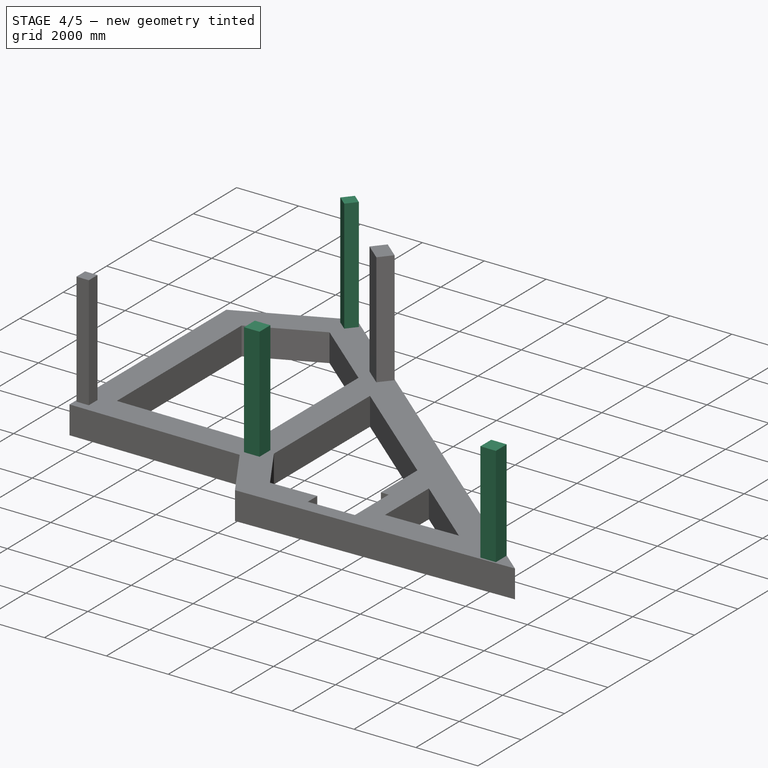
[diagram: stage 4 of 5 — iso view after this stage's code; geometry added in this stage tinted green]
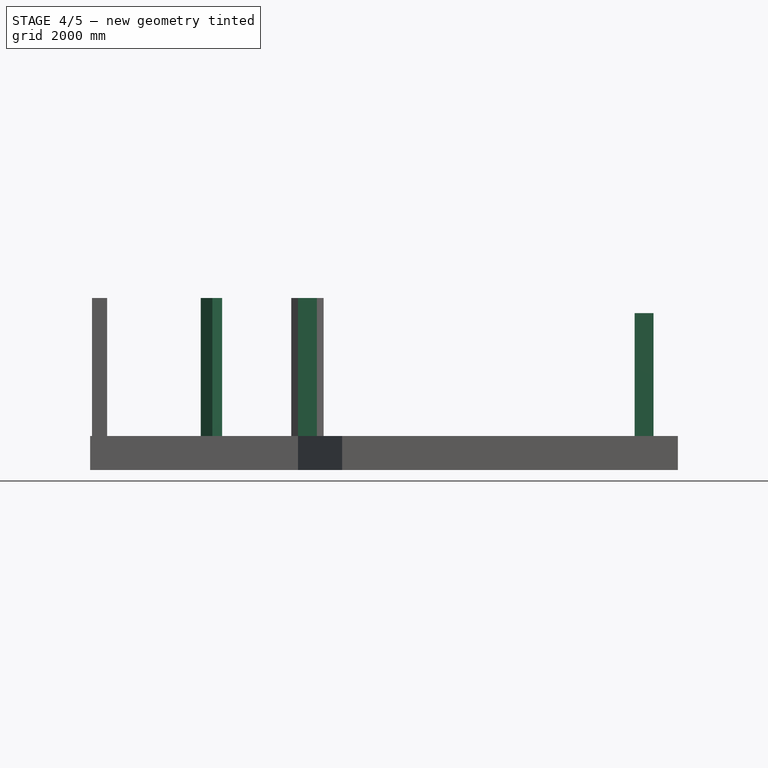
[diagram: stage 4 of 5 — front view after this stage's code; geometry added in this stage tinted green]
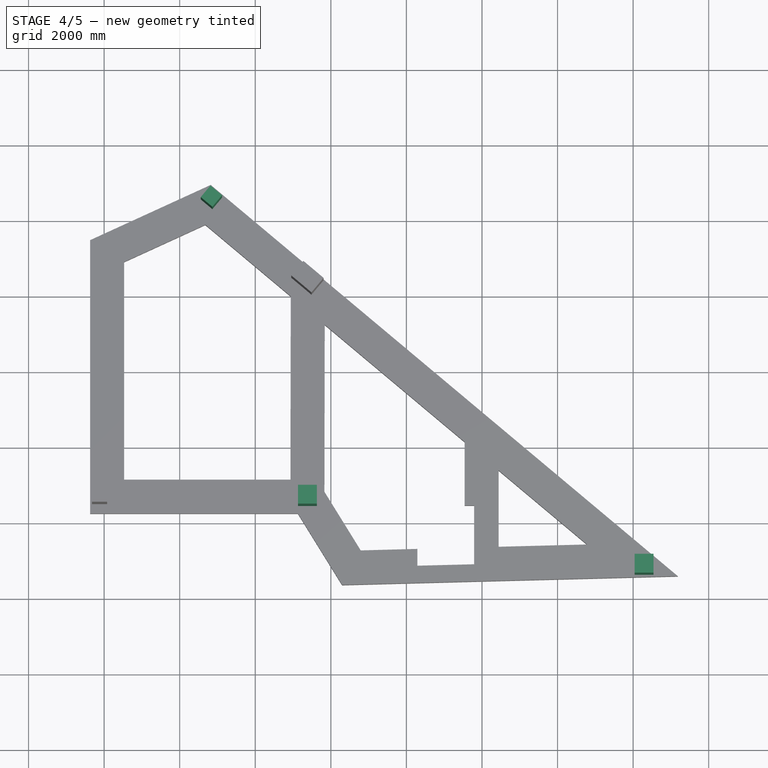
[diagram: stage 4 of 5 — top view after this stage's code; geometry added in this stage tinted green]
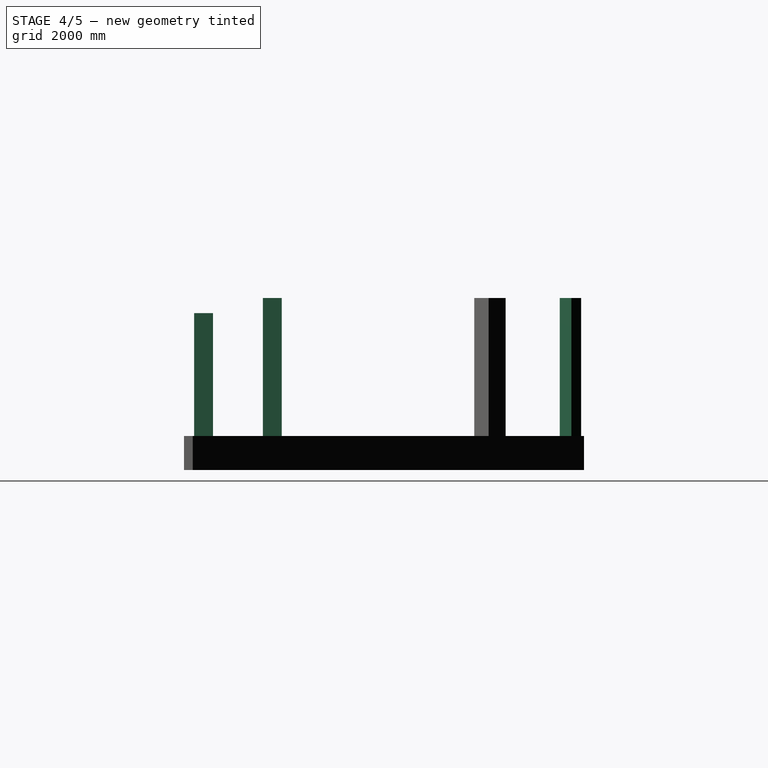
[diagram: stage 4 of 5 — right view after this stage's code; geometry added in this stage tinted green]
FEATURE [Part::FeaturePython] Structure004  label="C14_Story1"  # Arch/BIM 24 (typed FeaturePython)
  AttacherType = Attacher::AttachEngine3D
  AttachmentOffset = pos=(0,0,0) rot=(0,0,1;2.44538rad)
  Base = -> C4012C001
  BaseMirror = false
  BaseOffsetX = 0
  BaseOffsetY = 0
  BasePerpendicularToTool = false
  BaseRotation = 0
  ComputedLength = 3650
  FaceMaker = 0
  Height = 3650
  HorizontalArea = 160000
  IfcData = attributes={"GlobalId": {"name": "GlobalId", "type": "IfcGloballyUniqueId", "is_enum": false, "enum_values": []}, "Description": {"... (+438 chars omitted),+1 more (map truncated)
  IfcType = 24
  Length = 0
  MapMode = 7
  MoveBase = false
  MoveWithHost = false
  Nodes = (2) [(6840,10590,0),(6840,10590,3650)]
  NodesOffset = 0
  Normal = (0,0,0)
  PerimeterLength = 1600
  Placement = pos=(6840,10590,0) rot=(0,0,1;2.44538rad)
  PredefinedType = 0
  Support = -> [Line018]
  ToolOffsetFirst = 0
  ToolOffsetLast = 0
  VerticalArea = 5840000
  Width = 100
  combos_load = Combo10Civil-rho1.2 Max=634.924620552209, -14804.7970101484, -190150.821045417,+38 more (map truncated)
FEATURE [Part::FeaturePython] Structure005  label="C9_Story1"  # Arch/BIM 24 (typed FeaturePython)
  AttacherType = Attacher::AttachEngine3D
  AttachmentOffset = pos=(0,0,0) rot=(0,0,1;1.5708rad)
  Base = -> C5016AC
  BaseMirror = false
  BaseOffsetX = 0
  BaseOffsetY = 0
  BasePerpendicularToTool = false
  BaseRotation = 0
  ComputedLength = 3650
  FaceMaker = 0
  Height = 3650
  HorizontalArea = 250000
  IfcData = attributes={"GlobalId": {"name": "GlobalId", "type": "IfcGloballyUniqueId", "is_enum": false, "enum_values": []}, "Description": {"... (+438 chars omitted),+1 more (map truncated)
  IfcType = 24
  Length = 0
  MapMode = 7
  MoveBase = false
  MoveWithHost = false
  Nodes = (2) [(9380,2700,0),(9380,2700,3650)]
  NodesOffset = 0
  Normal = (0,0,0)
  PerimeterLength = 2000
  Placement = pos=(9380,2700,0) rot=(0,0,1;1.5708rad)
  PredefinedType = 0
  Support = -> [Line133]
  ToolOffsetFirst = 0
  ToolOffsetLast = 0
  VerticalArea = 7.3e+06
  Width = 100
  combos_load = Combo10Civil-rho1.2 Max=633.73674882039, -31211.445211075, -299825.642844314,+38 more (map truncated)
FEATURE [Part::FeaturePython] Structure006  label="C5_Story3"  # Arch/BIM 24 (typed FeaturePython)
  AttacherType = Attacher::AttachEngine3D
  AttachmentOffset = pos=(0,0,0) rot=(0,0,1;1.5708rad)
  Base = -> C5012A001
  BaseMirror = false
  BaseOffsetX = 0
  BaseOffsetY = 0
  BasePerpendicularToTool = false
  BaseRotation = 0
  ComputedLength = 3250
  FaceMaker = 0
  Height = 3250
  HorizontalArea = 250000
  IfcData = attributes={"GlobalId": {"name": "GlobalId", "type": "IfcGloballyUniqueId", "is_enum": false, "enum_values": []}, "Description": {"... (+438 chars omitted),+1 more (map truncated)
  IfcType = 24
  Length = 0
  MapMode = 7
  MoveBase = false
  MoveWithHost = false
  Nodes = (2) [(18290,880,0),(18290,880,3250)]
  NodesOffset = 0
  Normal = (0,0,0)
  PerimeterLength = 2000
  Placement = pos=(18290,880,0) rot=(0,0,1;1.5708rad)
  PredefinedType = 0
  Support = -> [Line020]
  ToolOffsetFirst = 0
  ToolOffsetLast = 0
  VerticalArea = 6.5e+06
  Width = 100
  combos_load = Combo10Civil-rho1.2 Max=1303.47371211123, -193798.640122642, -333278.425066611,+38 more (map truncated)
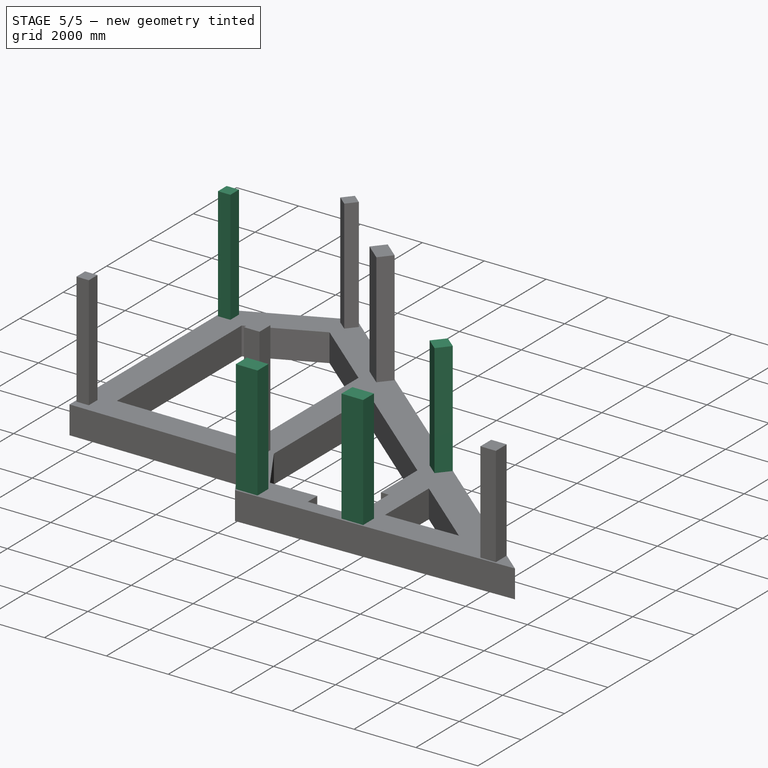
[diagram: stage 5 of 5 — iso view after this stage's code; geometry added in this stage tinted green]
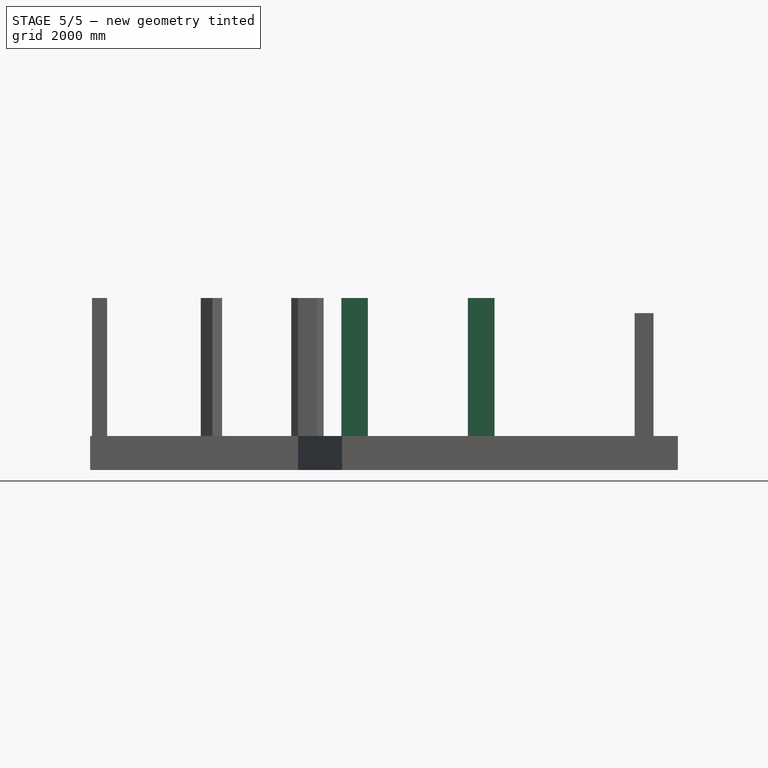
[diagram: stage 5 of 5 — front view after this stage's code; geometry added in this stage tinted green]
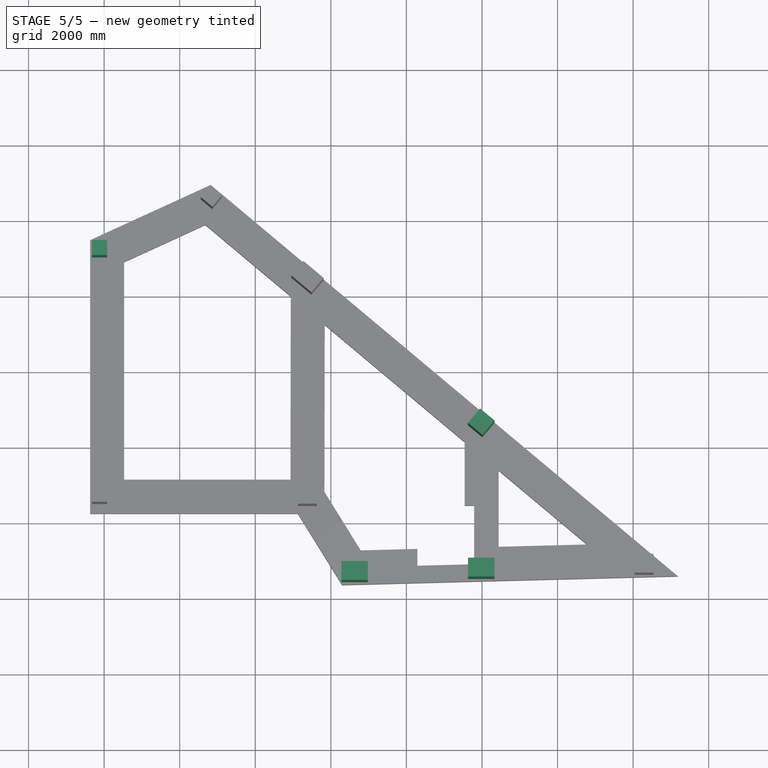
[diagram: stage 5 of 5 — top view after this stage's code; geometry added in this stage tinted green]
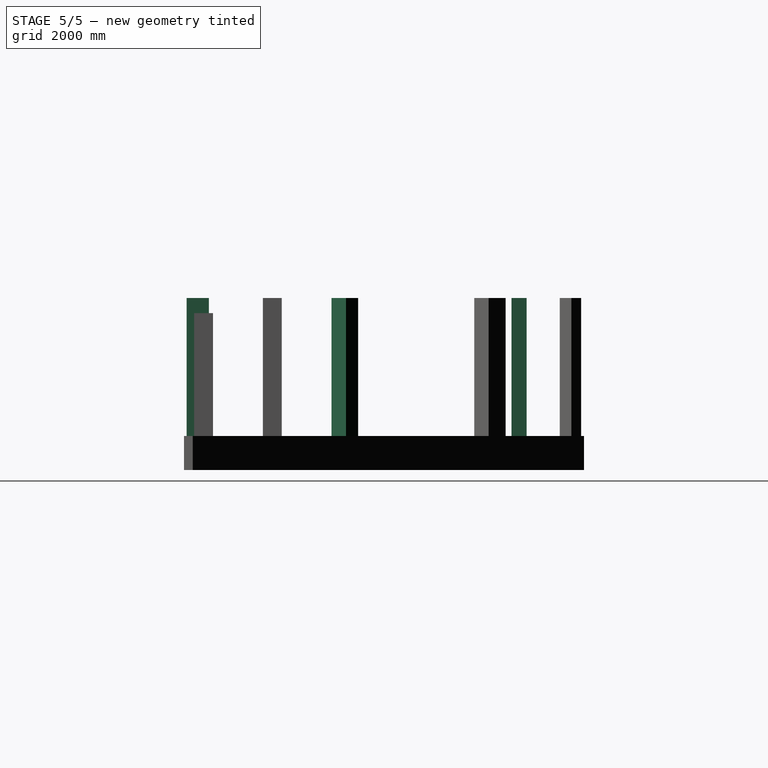
[diagram: stage 5 of 5 — right view after this stage's code; geometry added in this stage tinted green]
FEATURE [Part::Feature] Line083
  Placement = pos=(3152.09,199.738,0) rot=(0,0,1;0rad)
  shape: bbox 950 x 2e-07 x 2e-07 mm, 0 faces, 0 solids (baked)
FEATURE [Part::Feature] Line084
  Placement = pos=(3152.09,199.738,0) rot=(0,0,1;0rad)
  shape: bbox 250 x 2e-07 x 2e-07 mm, 0 faces, 0 solids (baked)
FEATURE [Part::Feature] Line085
  Placement = pos=(3152.09,199.738,0) rot=(0,0,1;0rad)
  shape: bbox 1230 x 1050 x 2e-07 mm, 0 faces, 0 solids (baked)
FEATURE [Part::Feature] Line086
  Placement = pos=(3152.09,199.738,0) rot=(0,0,1;0rad)
  shape: bbox 1230 x 1050 x 2e-07 mm, 0 faces, 0 solids (baked)
FEATURE [Part::Feature] Line087
  Placement = pos=(3152.09,199.738,0) rot=(0,0,1;0rad)
  shape: bbox 800 x 2e-07 x 2e-07 mm, 0 faces, 0 solids (baked)
FEATURE [Part::Feature] Line088
  Placement = pos=(3152.09,199.738,0) rot=(0,0,1;0rad)
  shape: bbox 800 x 2e-07 x 2e-07 mm, 0 faces, 0 solids (baked)
FEATURE [Part::Feature] Line089
  Placement = pos=(3152.09,199.738,0) rot=(0,0,1;0rad)
  shape: bbox 630 x 2e-07 x 2e-07 mm, 0 faces, 0 solids (baked)
FEATURE [Part::Feature] Line090
  Placement = pos=(3152.09,199.738,0) rot=(0,0,1;0rad)
  shape: bbox 630 x 2e-07 x 2e-07 mm, 0 faces, 0 solids (baked)
FEATURE [Part::Feature] Line091
  Placement = pos=(3152.09,199.738,0) rot=(0,0,1;0rad)
  shape: bbox 2e-07 x 138 x 2e-07 mm, 0 faces, 0 solids (baked)
FEATURE [Part::Feature] Line092
  Placement = pos=(3152.09,199.738,0) rot=(0,0,1;0rad)
  shape: bbox 2e-07 x 138 x 2e-07 mm, 0 faces, 0 solids (baked)
FEATURE [Part::Feature] Line093
  Placement = pos=(3152.09,199.738,0) rot=(0,0,1;0rad)
  shape: bbox 2e-07 x 100 x 2e-07 mm, 0 faces, 0 solids (baked)
FEATURE [Part::Feature] Line094
  Placement = pos=(3152.09,199.738,0) rot=(0,0,1;0rad)
  shape: bbox 2e-07 x 100 x 2e-07 mm, 0 faces, 0 solids (baked)
FEATURE [Part::Feature] Line095
  Placement = pos=(3152.09,199.738,0) rot=(0,0,1;0rad)
  shape: bbox 2e-07 x 45 x 2e-07 mm, 0 faces, 0 solids (baked)
FEATURE [Part::Feature] Line096
  Placement = pos=(3152.09,199.738,0) rot=(0,0,1;0rad)
  shape: bbox 2e-07 x 45 x 2e-07 mm, 0 faces, 0 solids (baked)
FEATURE [Part::Feature] Line097
  Placement = pos=(3152.09,199.738,0) rot=(0,0,1;0rad)
  shape: bbox 2e-07 x 1788 x 2e-07 mm, 0 faces, 0 solids (baked)
FEATURE [Part::Feature] Line098
  Placement = pos=(3152.09,199.738,0) rot=(0,0,1;0rad)
  shape: bbox 2e-07 x 1897 x 2e-07 mm, 0 faces, 0 solids (baked)
FEATURE [Part::Feature] Line099
  Placement = pos=(3152.09,199.738,0) rot=(0,0,1;0rad)
  shape: bbox 2e-07 x 2180 x 2e-07 mm, 0 faces, 0 solids (baked)
FEATURE [Part::Feature] Line100
  Placement = pos=(3152.09,199.738,0) rot=(0,0,1;0rad)
  shape: bbox 1847 x 47.07 x 2e-07 mm, 0 faces, 0 solids (baked)
FEATURE [Part::Feature] Line101
  Placement = pos=(3152.09,199.738,0) rot=(0,0,1;0rad)
  shape: bbox 1327 x 33.82 x 2e-07 mm, 0 faces, 0 solids (baked)
FEATURE [Part::Feature] Line102
  Placement = pos=(3152.09,199.738,0) rot=(0,0,1;0rad)
  shape: bbox 928.1 x 775.8 x 2e-07 mm, 0 faces, 0 solids (baked)
FEATURE [Part::Feature] Line103
  Placement = pos=(3152.09,199.738,0) rot=(0,0,1;0rad)
  shape: bbox 186.3 x 226 x 2e-07 mm, 0 faces, 0 solids (baked)
FEATURE [Part::Feature] Line104
  Placement = pos=(3152.09,199.738,0) rot=(0,0,1;0rad)
  shape: bbox 18.23 x 188.9 x 2e-07 mm, 0 faces, 0 solids (baked)
FEATURE [Part::Feature] Line105
  Placement = pos=(3152.09,199.738,0) rot=(0,0,1;0rad)
  shape: bbox 189.1 x 16.67 x 2e-07 mm, 0 faces, 0 solids (baked)
FEATURE [Part::Feature] Line106
  Placement = pos=(3152.09,199.738,0) rot=(0,0,1;0rad)
  shape: bbox 2e-07 x 1454 x 2e-07 mm, 0 faces, 0 solids (baked)
FEATURE [Part::Feature] Line107
  Placement = pos=(3152.09,199.738,0) rot=(0,0,1;0rad)
  shape: bbox 2e-07 x 1688 x 2e-07 mm, 0 faces, 0 solids (baked)
FEATURE [Part::Feature] Line108
  Placement = pos=(3152.09,199.738,0) rot=(0,0,1;0rad)
  shape: bbox 2e-07 x 1922 x 2e-07 mm, 0 faces, 0 solids (baked)
FEATURE [Part::Feature] Line109
  Placement = pos=(3152.09,199.738,0) rot=(0,0,1;0rad)
  shape: bbox 1385 x 2e-07 x 2e-07 mm, 0 faces, 0 solids (baked)
FEATURE [Part::Feature] Line110
  Placement = pos=(3152.09,199.738,0) rot=(0,0,1;0rad)
  shape: bbox 627.7 x 1079 x 2e-07 mm, 0 faces, 0 solids (baked)
FEATURE [Part::Feature] Line111 .. Line114  x4 (patterned run collapsed; names and placements below)
  shape: bbox 128.3 x 153.5 x 2e-07 mm, 0 faces, 0 solids (baked)
  placements: all 4 at pos=(3152.09,199.738,0) rot=(0,0,1;0rad)
FEATURE [Part::Feature] Line115
  Placement = pos=(3152.09,199.738,0) rot=(0,0,1;0rad)
  shape: bbox 641.3 x 767.3 x 2e-07 mm, 0 faces, 0 solids (baked)
FEATURE [Part::Feature] Line116
  Placement = pos=(3152.09,199.738,0) rot=(0,0,1;0rad)
  shape: bbox 513 x 613.8 x 2e-07 mm, 0 faces, 0 solids (baked)
FEATURE [Part::Feature] Line117
  Placement = pos=(3152.09,199.738,0) rot=(0,0,1;0rad)
  shape: bbox 2e-07 x 3093 x 2e-07 mm, 0 faces, 0 solids (baked)
FEATURE [Part::Feature] Line118
  Placement = pos=(3152.09,199.738,0) rot=(0,0,1;0rad)
  shape: bbox 2e-07 x 3093 x 2e-07 mm, 0 faces, 0 solids (baked)
FEATURE [Part::Feature] Line119
  Placement = pos=(3152.09,199.738,0) rot=(0,0,1;0rad)
  shape: bbox 2e-07 x 100 x 2e-07 mm, 0 faces, 0 solids (baked)
FEATURE [Part::Feature] Line120
  Placement = pos=(3152.09,199.738,0) rot=(0,0,1;0rad)
  shape: bbox 2e-07 x 100 x 2e-07 mm, 0 faces, 0 solids (baked)
FEATURE [Part::Feature] Line121
  Placement = pos=(3152.09,199.738,0) rot=(0,0,1;0rad)
  shape: bbox 920.7 x 769.6 x 2e-07 mm, 0 faces, 0 solids (baked)
FEATURE [Part::Feature] Line122
  Placement = pos=(3152.09,199.738,0) rot=(0,0,1;0rad)
  shape: bbox 2e-07 x 156.9 x 2e-07 mm, 0 faces, 0 solids (baked)
FEATURE [Part::Feature] Line123
  Placement = pos=(3152.09,199.738,0) rot=(0,0,1;0rad)
  shape: bbox 293.6 x 2e-07 x 2e-07 mm, 0 faces, 0 solids (baked)
FEATURE [Part::Feature] Line124
  Placement = pos=(3152.09,199.738,0) rot=(0,0,1;0rad)
  shape: bbox 2e-07 x 1587 x 2e-07 mm, 0 faces, 0 solids (baked)
FEATURE [Part::Feature] Line125
  Placement = pos=(3152.09,199.738,0) rot=(0,0,1;0rad)
  shape: bbox 50 x 2e-07 x 2e-07 mm, 0 faces, 0 solids (baked)
FEATURE [Part::Feature] Line126
  Placement = pos=(3152.09,199.738,0) rot=(0,0,1;0rad)
  shape: bbox 280 x 335 x 2e-07 mm, 0 faces, 0 solids (baked)
FEATURE [Part::Feature] Line127
  Placement = pos=(3152.09,199.738,0) rot=(0,0,1;0rad)
  shape: bbox 309.2 x 369.9 x 2e-07 mm, 0 faces, 0 solids (baked)
FEATURE [Part::Feature] Line128
  Placement = pos=(3152.09,199.738,0) rot=(0,0,1;0rad)
  shape: bbox 2e-07 x 531.5 x 2e-07 mm, 0 faces, 0 solids (baked)
FEATURE [Part::Feature] Line129
  Placement = pos=(3152.09,199.738,0) rot=(0,0,1;0rad)
  shape: bbox 336.1 x 2e-07 x 2e-07 mm, 0 faces, 0 solids (baked)
FEATURE [Part::Feature] Line130
  Placement = pos=(3152.09,199.738,0) rot=(0,0,1;0rad)
  shape: bbox 2e-07 x 91.37 x 2e-07 mm, 0 faces, 0 solids (baked)
FEATURE [Part::Feature] Line131
  Placement = pos=(3152.09,199.738,0) rot=(0,0,1;0rad)
  shape: bbox 5508 x 2e-07 x 2e-07 mm, 0 faces, 0 solids (baked)
FEATURE [Part::Feature] Polyline
  Placement = pos=(3152.09,199.738,0) rot=(0,0,1;0rad)
  shape: bbox 15560 x 396.6 x 2e-07 mm, 0 faces, 0 solids (baked)
FEATURE [Part::Feature] Polyline001
  Placement = pos=(3152.09,199.738,0) rot=(0,0,1;0rad)
  shape: bbox 9997 x 254.7 x 2e-07 mm, 0 faces, 0 solids (baked)
FEATURE [Part::Feature] Polyline002
  Placement = pos=(3152.09,199.738,0) rot=(0,0,1;0rad)
  shape: bbox 5508 x 5233 x 2e-07 mm, 0 faces, 0 solids (baked)
FEATURE [Part::Feature] Polyline003
  Placement = pos=(3152.09,199.738,0) rot=(0,0,1;0rad)
  shape: bbox 2685 x 2245 x 2e-07 mm, 0 faces, 0 solids (baked)
FEATURE [Part::Feature] Polyline004
  Placement = pos=(3152.09,199.738,0) rot=(0,0,1;0rad)
  shape: bbox 2685 x 2245 x 2e-07 mm, 0 faces, 0 solids (baked)
FEATURE [Part::Feature] Polyline005
  Placement = pos=(3152.09,199.738,0) rot=(0,0,1;0rad)
  shape: bbox 115.1 x 96.2 x 2e-07 mm, 0 faces, 0 solids (baked)
FEATURE [Part::Feature] Polyline006
  Placement = pos=(3152.09,199.738,0) rot=(0,0,1;0rad)
  shape: bbox 5455 x 4560 x 2e-07 mm, 0 faces, 0 solids (baked)
FEATURE [Part::Feature] Polyline007
  Placement = pos=(3152.09,199.738,0) rot=(0,0,1;0rad)
  shape: bbox 5358 x 5079 x 2e-07 mm, 0 faces, 0 solids (baked)
FEATURE [Part::Feature] Polyline008
  Placement = pos=(3152.09,199.738,0) rot=(0,0,1;0rad)
  shape: bbox 4743 x 4464 x 2e-07 mm, 0 faces, 0 solids (baked)
FEATURE [Part::Feature] Polyline009
  Placement = pos=(3152.09,199.738,0) rot=(0,0,1;0rad)
  shape: bbox 1302 x 1140 x 2e-07 mm, 0 faces, 0 solids (baked)
FEATURE [Part::Feature] Polyline010
  Placement = pos=(3152.09,199.738,0) rot=(0,0,1;0rad)
  shape: bbox 1083 x 180 x 2e-07 mm, 1 faces, 0 solids (baked)
FEATURE [Part::Feature] Polyline011
  Placement = pos=(3152.09,199.738,0) rot=(0,0,1;0rad)
  shape: bbox 1029 x 126 x 2e-07 mm, 1 faces, 0 solids (baked)
FEATURE [Part::Feature] Polyline012
  Placement = pos=(3152.09,199.738,0) rot=(0,0,1;0rad)
  shape: bbox 603 x 27 x 2e-07 mm, 0 faces, 0 solids (baked)
FEATURE [Part::Feature] Polyline013
  Placement = pos=(3152.09,199.738,0) rot=(0,0,1;0rad)
  shape: bbox 250 x 150 x 2e-07 mm, 0 faces, 0 solids (baked)
FEATURE [Part::Feature] Polyline014
  Placement = pos=(3152.09,199.738,0) rot=(0,0,1;0rad)
  shape: bbox 250 x 150 x 2e-07 mm, 0 faces, 0 solids (baked)
FEATURE [Part::Feature] Polyline015
  Placement = pos=(3152.09,199.738,0) rot=(0,0,1;0rad)
  shape: bbox 385 x 30 x 2e-07 mm, 1 faces, 0 solids (baked)
FEATURE [Part::Feature] Polyline016
  Placement = pos=(3152.09,199.738,0) rot=(0,0,1;0rad)
  shape: bbox 385 x 30 x 2e-07 mm, 1 faces, 0 solids (baked)
FEATURE [Part::Feature] Polyline017
  Placement = pos=(3152.09,199.738,0) rot=(0,0,1;0rad)
  shape: bbox 840 x 500 x 2e-07 mm, 0 faces, 0 solids (baked)
FEATURE [Part::Feature] Polyline018
  Placement = pos=(3152.09,199.738,0) rot=(0,0,1;0rad)
  shape: bbox 1374 x 270.4 x 2e-07 mm, 1 faces, 0 solids (baked)
FEATURE [Part::Feature] Polyline019
  Placement = pos=(3152.09,199.738,0) rot=(0,0,1;0rad)
  shape: bbox 82.5 x 95.26 x 2e-07 mm, 1 faces, 0 solids (baked)
FEATURE [Part::Feature] Polyline020
  Placement = pos=(3152.09,199.738,0) rot=(0,0,1;0rad)
  shape: bbox 1374 x 270.4 x 2e-07 mm, 1 faces, 0 solids (baked)
FEATURE [Part::Feature] Circle
  Placement = pos=(3152.09,199.738,0) rot=(0,0,1;0rad)
  shape: bbox 88.02 x 88.02 x 2e-07 mm, 0 faces, 0 solids (baked)
FEATURE [Part::Feature] Block_A_C4ADC07F6
  Placement = pos=(6178.99,8024.92,0) rot=(0,0,1;0rad)
  shape: bbox 4800 x 2500 x 2e-07 mm, 1 faces, 0 solids (baked)
FEATURE [Part::Feature] Block_TreeP_03a
  Placement = pos=(4146.99,771.245,0) rot=(0,0,1;0rad)
  shape: bbox 1946 x 1986 x 2e-07 mm, 0 faces, 0 solids (baked)
FEATURE [Part::Feature] Block_TreeP_01a
  Placement = pos=(3970.97,1544.99,0) rot=(0,0,1;0rad)
  shape: bbox 1132 x 1268 x 2e-07 mm, 3 faces, 0 solids (baked)
FEATURE [Part::Feature] Block_TreeP_01a001
  Placement = pos=(4723.16,635.503,0) rot=(0,0,1;0rad)
  shape: bbox 1237 x 974.1 x 2e-07 mm, 3 faces, 0 solids (baked)
FEATURE [Part::Feature] Block_TreeP_03a001
  Placement = pos=(5960.31,737.332,0) rot=(0,0,1;0rad)
  shape: bbox 1946 x 1986 x 2e-07 mm, 0 faces, 0 solids (baked)
FEATURE [Part::Feature] Block_TreeP_03a002
  Placement = pos=(7730.79,821.365,0) rot=(0,0,1;0rad)
  shape: bbox 1946 x 1986 x 2e-07 mm, 0 faces, 0 solids (baked)
FEATURE [Part::Feature] Block_TreeP_01a002
  Placement = pos=(8330.73,626.638,0) rot=(0,0,1;0rad)
  shape: bbox 1237 x 974.1 x 2e-07 mm, 3 faces, 0 solids (baked)
FEATURE [Part::Feature] Block_TreeP_01a003
  Placement = pos=(7076.14,594.67,0) rot=(0,0,1;0rad)
  shape: bbox 1276 x 1123 x 2e-07 mm, 3 faces, 0 solids (baked)
FEATURE [Part::Feature] Block_A_C67844AE1
  Placement = pos=(12239.2,3054.27,0) rot=(0,0,1;0rad)
  shape: bbox 1511 x 600 x 2e-07 mm, 0 faces, 0 solids (baked)
FEATURE [Part::Feature] Block_st007
  Placement = pos=(-4.92356e+08,-3.8359e+09,0) rot=(0,0,1;0rad)
  shape: bbox 700 x 700 x 2e-07 mm, 1 faces, 0 solids (baked)
FEATURE [Part::Feature] Block_st011
  Placement = pos=(-4.92366e+08,-3.83589e+09,0) rot=(0,0,1;0rad)
  shape: bbox 700 x 700 x 2e-07 mm, 1 faces, 0 solids (baked)
FEATURE [Part::Feature] Block_st012
  Placement = pos=(-2.83779e+09,-2.62743e+09,0) rot=(0,0,1;0rad)
  shape: bbox 704.3 x 704.3 x 2e-07 mm, 1 faces, 0 solids (baked)
FEATURE [Part::Feature] Block_st013
  Placement = pos=(-4.92361e+08,-3.83589e+09,0) rot=(0,0,1;0rad)
  shape: bbox 700 x 700 x 2e-07 mm, 1 faces, 0 solids (baked)
FEATURE [Part::Feature] Block_TreeP_03a003
  Placement = pos=(4146.99,2929.85,0) rot=(0,0,1;0rad)
  shape: bbox 1946 x 1986 x 2e-07 mm, 0 faces, 0 solids (baked)
FEATURE [Part::Feature] Block_TreeP_03a004
  Placement = pos=(4146.99,4732.44,0) rot=(0,0,1;0rad)
  shape: bbox 1946 x 1986 x 2e-07 mm, 0 faces, 0 solids (baked)
FEATURE [Part::Feature] Block_TreeP_01a004
  Placement = pos=(3970.97,3596.88,0) rot=(0,0,1;0rad)
  shape: bbox 1132 x 1268 x 2e-07 mm, 3 faces, 0 solids (baked)
FEATURE [App::DocumentObjectGroup] Group  label="Plan"
  Group = -> [Line038,Line039,Line040,Line041,Line042,Line043,Line044,Line045,Line046,Line047,Line048,Line049,Line050,Line051,Line052,Line053,Line054,Line055,Line056,Line057,Line058,Line059,Line060,Line061,Line062,Line063,Line064,Line065,Line066,Line067,Line068,Line069,Line070,Line071,Line072,Line073,Line074,Line075,Line076,Line077,Line078,Line079,Line080,Line081,Line082,Line083,Line084,Line085,Line086,Line087,+82 more]
FEATURE [Part::Part2DObjectPython] C4012C001  # Draft 2D object (typed FeaturePython)
  Height = 400
  Width = 400
FEATURE [Part::Part2DObjectPython] C4012CD  # Draft 2D object (typed FeaturePython)
  Height = 400
  Width = 400
FEATURE [Part::Part2DObjectPython] C5012A001  # Draft 2D object (typed FeaturePython)
  Height = 500
  Width = 500
FEATURE [Part::Part2DObjectPython] C5016A001  # Draft 2D object (typed FeaturePython)
  Height = 700
  Width = 500
FEATURE [Part::Part2DObjectPython] C5016AC  # Draft 2D object (typed FeaturePython)
  Height = 500
  Width = 500
FEATURE [Part::Part2DObjectPython] Line  # Draft 2D object (typed FeaturePython)
  Area = 0
  ChamferSize = 0
  Closed = false
  End = (3880,9230,0)
  FilletRadius = 0
  Length = 6530
  MakeFace = true
  Points = (2) [(3880,2700,0),(3880,9230,0)]
  Start = (3880,2700,0)
  Subdivisions = 0
  type = Beam
FEATURE [Part::Part2DObjectPython] Line003  # Draft 2D object (typed FeaturePython)
  Area = 0
  ChamferSize = 0
  Closed = false
  End = (9380,2700,0)
  FilletRadius = 0
  Length = 5500
  MakeFace = true
  Points = (2) [(3880,2700,0),(9380,2700,0)]
  Start = (3880,2700,0)
  Subdivisions = 0
  type = Beam
FEATURE [Part::Part2DObjectPython] Line014  label="C3_Story1_CenterLine"  # Draft 2D object (typed FeaturePython)
  Area = 0
  ChamferSize = 0
  Closed = false
  End = (13980,770,3650)
  FilletRadius = 0
  Length = 3650
  MakeFace = true
  Points = (2) [(13980,770,0),(13980,770,3650)]
  Start = (13980,770,0)
  Subdivisions = 0
FEATURE [Part::Part2DObjectPython] Line015  label="C10_Story1_CenterLine"  # Draft 2D object (typed FeaturePython)
  Area = 0
  ChamferSize = 0
  Closed = false
  End = (13980,4620,3650)
  FilletRadius = 0
  Length = 3650
  MakeFace = true
  Points = (2) [(13980,4620,0),(13980,4620,3650)]
  Start = (13980,4620,0)
  Subdivisions = 0
FEATURE [Part::Part2DObjectPython] Line017  label="C13_Story1_CenterLine"  # Draft 2D object (typed FeaturePython)
  Area = 0
  ChamferSize = 0
  Closed = false
  End = (3880,9230,3650)
  FilletRadius = 0
  Length = 3650
  MakeFace = true
  Points = (2) [(3880,9230,0),(3880,9230,3650)]
  Start = (3880,9230,0)
  Subdivisions = 0
FEATURE [Part::Part2DObjectPython] Line018  label="C14_Story1_CenterLine"  # Draft 2D object (typed FeaturePython)
  Area = 0
  ChamferSize = 0
  Closed = false
  End = (6840,10590,3650)
  FilletRadius = 0
  Length = 3650
  MakeFace = true
  Points = (2) [(6840,10590,0),(6840,10590,3650)]
  Start = (6840,10590,0)
  Subdivisions = 0
FEATURE [Part::Part2DObjectPython] Line133  label="C9_Story1_CenterLine"  # Draft 2D object (typed FeaturePython)
  Area = 0
  ChamferSize = 0
  Closed = false
  End = (9380,2700,3650)
  FilletRadius = 0
  Length = 3650
  MakeFace = true
  Points = (2) [(9380,2700,0),(9380,2700,3650)]
  Start = (9380,2700,0)
  Subdivisions = 0
FEATURE [Part::Part2DObjectPython] Line020  label="C5_Story3_CenterLine"  # Draft 2D object (typed FeaturePython)
  Area = 0
  ChamferSize = 0
  Closed = false
  End = (18290,880,3250)
  FilletRadius = 0
  Length = 3250
  MakeFace = true
  Points = (2) [(18290,880,0),(18290,880,3250)]
  Start = (18290,880,0)
  Subdivisions = 0
FEATURE [Part::Part2DObjectPython] Line021  label="C12_Story1_CenterLine"  # Draft 2D object (typed FeaturePython)
  Area = 0
  ChamferSize = 0
  Closed = false
  End = (9380,8460,3650)
  FilletRadius = 0
  Length = 3650
  MakeFace = true
  Points = (2) [(9380,8460,0),(9380,8460,3650)]
  Start = (9380,8460,0)
  Subdivisions = 0
FEATURE [Part::Part2DObjectPython] Line135  label="C8_Story1_CenterLine"  # Draft 2D object (typed FeaturePython)
  Area = 0
  ChamferSize = 0
  Closed = false
  End = (3880,2700,3650)
  FilletRadius = 0
  Length = 3650
  MakeFace = true
  Points = (2) [(3880,2700,0),(3880,2700,3650)]
  Start = (3880,2700,0)
  Subdivisions = 0
FEATURE [Part::FeaturePython] Structure  label="C3_Story1"  # Arch/BIM 24 (typed FeaturePython)
  AttacherType = Attacher::AttachEngine3D
  AttachmentOffset = pos=(0,0,0) rot=(0,0,1;1.5708rad)
  Base = -> C5016A001
  BaseMirror = false
  BaseOffsetX = 0
  BaseOffsetY = 0
  BasePerpendicularToTool = false
  BaseRotation = 0
  ComputedLength = 3650
  FaceMaker = 0
  Height = 3650
  HorizontalArea = 350000
  IfcData = attributes={"GlobalId": {"name": "GlobalId", "type": "IfcGloballyUniqueId", "is_enum": false, "enum_values": []}, "Description": {"... (+438 chars omitted),+1 more (map truncated)
  IfcType = 24
  Length = 0
  MapMode = 7
  MoveBase = false
  MoveWithHost = false
  Nodes = (2) [(13980,770,0),(13980,770,3650)]
  NodesOffset = 0
  Normal = (0,0,0)
  PerimeterLength = 2400
  Placement = pos=(13980,770,0) rot=(0,0,1;1.5708rad)
  PredefinedType = 0
  Support = -> [Line014]
  ToolOffsetFirst = 0
  ToolOffsetLast = 0
  VerticalArea = 8.76e+06
  Width = 100
  combos_load = Combo10Civil-rho1.2 Max=610.035248477778, -44832.9398600068, -320466.02605556,+38 more (map truncated)
FEATURE [Part::FeaturePython] Structure001  label="C10_Story1"  # Arch/BIM 24 (typed FeaturePython)
  AttacherType = Attacher::AttachEngine3D
  AttachmentOffset = pos=(0,0,0) rot=(0,0,1;2.44538rad)
  Base = -> C5012A001
  BaseMirror = false
  BaseOffsetX = 0
  BaseOffsetY = 0
  BasePerpendicularToTool = false
  BaseRotation = 0
  ComputedLength = 3650
  FaceMaker = 0
  Height = 3650
  HorizontalArea = 250000
  IfcData = attributes={"GlobalId": {"name": "GlobalId", "type": "IfcGloballyUniqueId", "is_enum": false, "enum_values": []}, "Description": {"... (+438 chars omitted),+1 more (map truncated)
  IfcType = 24
  Length = 0
  MapMode = 7
  MoveBase = false
  MoveWithHost = false
  Nodes = (2) [(13980,4620,0),(13980,4620,3650)]
  NodesOffset = 0
  Normal = (0,0,0)
  PerimeterLength = 2000
  Placement = pos=(13980,4620,0) rot=(0,0,1;2.44538rad)
  PredefinedType = 0
  Support = -> [Line015]
  ToolOffsetFirst = 0
  ToolOffsetLast = 0
  VerticalArea = 7.3e+06
  Width = 100
  combos_load = Combo10Civil-rho1.2 Max=1042.39829344737, -64111.1903738883, -273955.1458626,+38 more (map truncated)
FEATURE [Part::FeaturePython] Structure002  label="C2_Story1"  # Arch/BIM 24 (typed FeaturePython)
  AttacherType = Attacher::AttachEngine3D
  AttachmentOffset = pos=(0,0,0) rot=(0,0,1;1.5708rad)
  Base = -> C5016A001
  BaseMirror = false
  BaseOffsetX = 0
  BaseOffsetY = 0
  BasePerpendicularToTool = false
  BaseRotation = 0
  ComputedLength = 3650
  FaceMaker = 0
  Height = 3650
  HorizontalArea = 350000
  IfcData = attributes={"GlobalId": {"name": "GlobalId", "type": "IfcGloballyUniqueId", "is_enum": false, "enum_values": []}, "Description": {"... (+438 chars omitted),+1 more (map truncated)
  IfcType = 24
  Length = 0
  MapMode = 7
  MoveBase = false
  MoveWithHost = false
  Nodes = (2) [(10630,681,0),(10630,681,3650)]
  NodesOffset = 0
  Normal = (0,0,0)
  PerimeterLength = 2400
  Placement = pos=(10630,681,0) rot=(0,0,1;1.5708rad)
  PredefinedType = 0
  ToolOffsetFirst = 0
  ToolOffsetLast = 0
  VerticalArea = 8760000
  Width = 100
  combos_load = Combo10Civil-rho1.2 Max=-18.0160240115186, -19034.8050084215, -271488.379948732,+38 more (map truncated)
FEATURE [Part::FeaturePython] Structure003  label="C13_Story1"  # Arch/BIM 24 (typed FeaturePython)
  AttacherType = Attacher::AttachEngine3D
  AttachmentOffset = pos=(0,0,0) rot=(0,0,1;1.5708rad)
  Base = -> C4012C001
  BaseMirror = false
  BaseOffsetX = 0
  BaseOffsetY = 0
  BasePerpendicularToTool = false
  BaseRotation = 0
  ComputedLength = 3650
  FaceMaker = 0
  Height = 3650
  HorizontalArea = 160000
  IfcData = attributes={"GlobalId": {"name": "GlobalId", "type": "IfcGloballyUniqueId", "is_enum": false, "enum_values": []}, "Description": {"... (+438 chars omitted),+1 more (map truncated)
  IfcType = 24
  Length = 0
  MapMode = 7
  MoveBase = false
  MoveWithHost = false
  Nodes = (2) [(3880,9230,0),(3880,9230,3650)]
  NodesOffset = 0
  Normal = (0,0,0)
  PerimeterLength = 1600
  Placement = pos=(3880,9230,0) rot=(0,0,1;1.5708rad)
  PredefinedType = 0
  Support = -> [Line017]
  ToolOffsetFirst = 0
  ToolOffsetLast = 0
  VerticalArea = 5.84e+06
  Width = 100
  combos_load = Combo10Civil-rho1.2 Max=104.180242470642, 25276.4116265536, -156784.029286622,+38 more (map truncated)
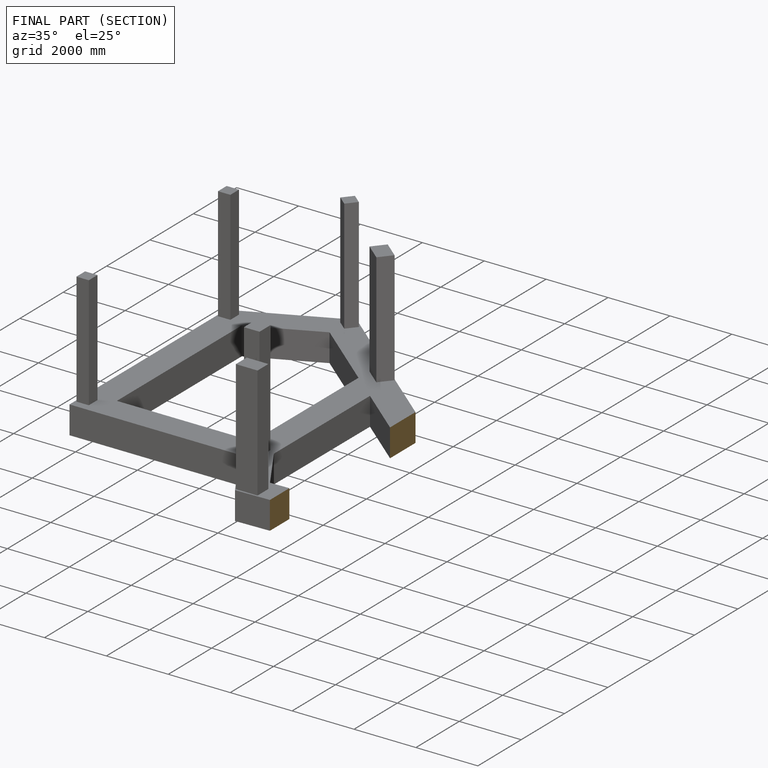
[diagram: finished part — half-section view (interior)]
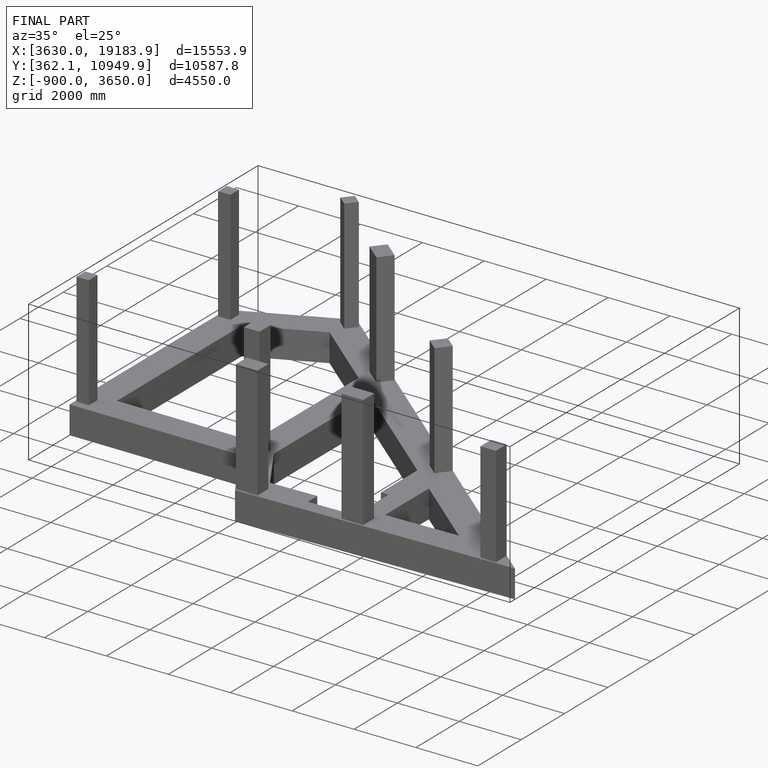
[diagram: finished part — iso view with bounding-box wireframe]
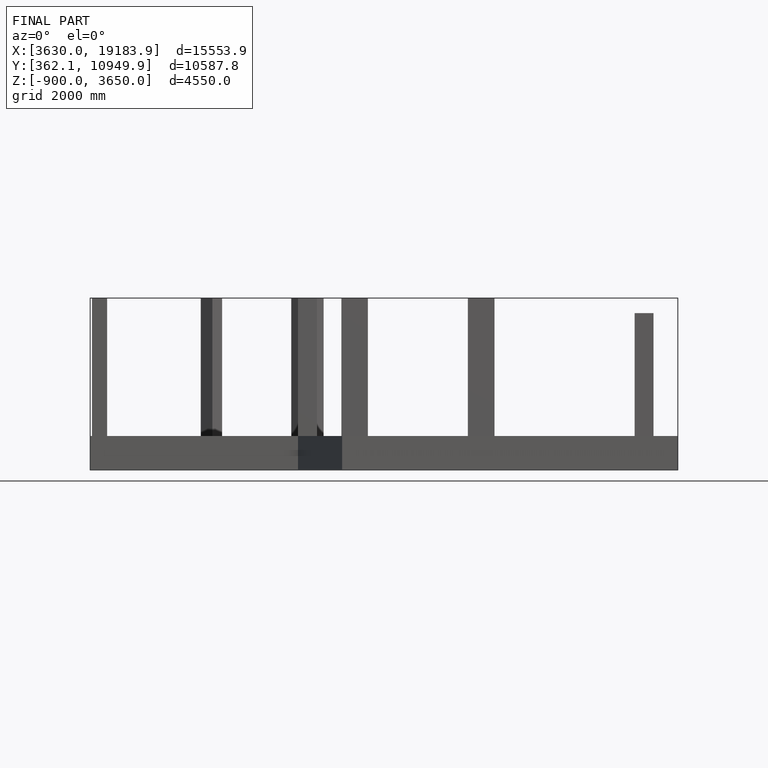
[diagram: finished part — front view with bounding-box wireframe]
